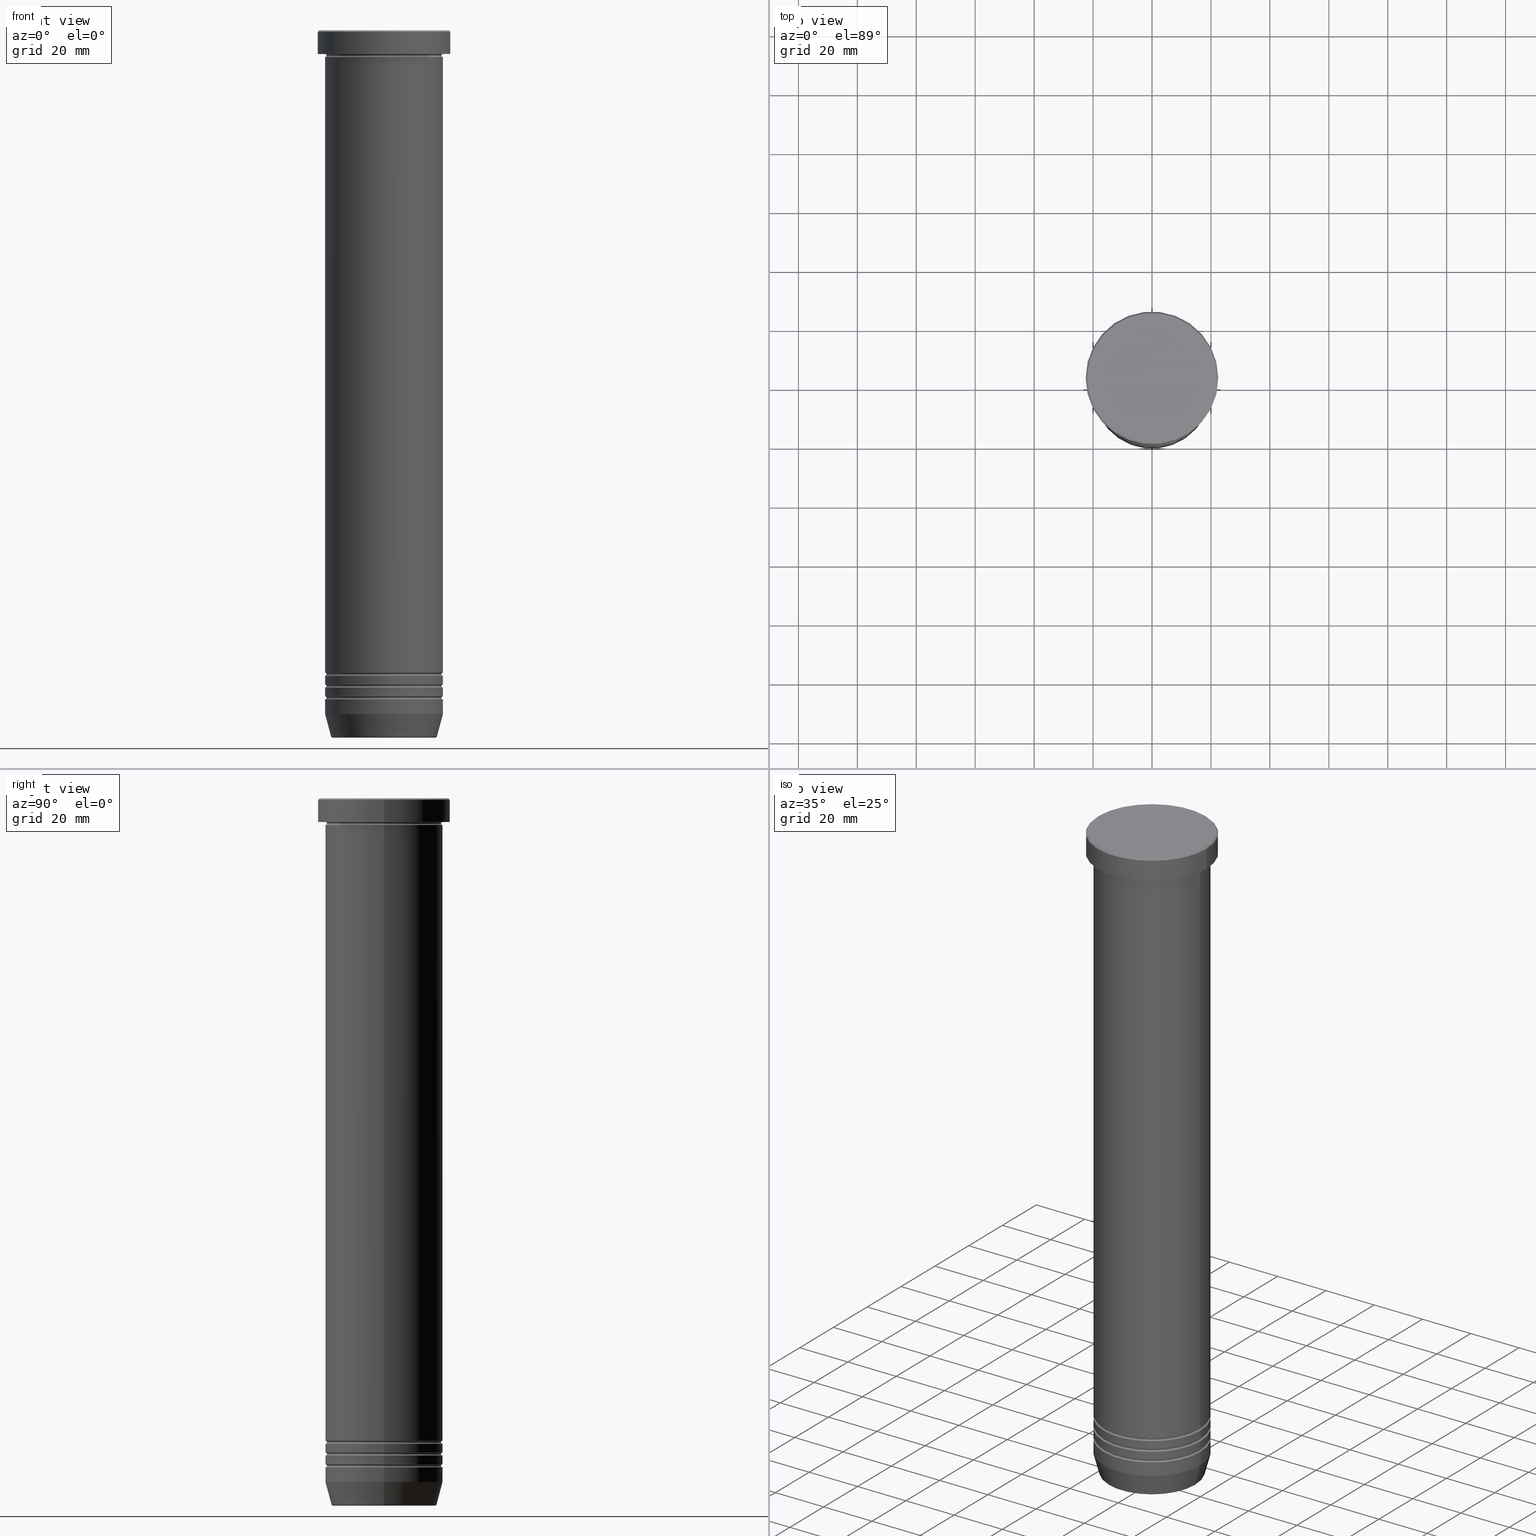
[diagram: canonical four-view strip — front | top / right | iso, engineering-drawing reading convention]
A machine part, canonical four-view strip (front | top / right | iso — engineering-drawing reading convention). The complete STEP part file that produces these views, byte-faithful:
ISO-10303-21;
HEADER;
FILE_DESCRIPTION (( 'STEP AP203' ),
    '1' );
FILE_NAME ('f930.STEP',
    '2024-01-02T18:50:26',
    ( '' ),
    ( '' ),
    'SwSTEP 2.0',
    'SolidWorks 2019',
    '' );
FILE_SCHEMA (( 'CONFIG_CONTROL_DESIGN' ));
ENDSEC;

DATA;
#1 = EDGE_LOOP ( 'NONE', ( #616, #652, #137, #670 ) ) ;
#2 = ORIENTED_EDGE ( 'NONE', *, *, #938, .T. ) ;
#3 = DIRECTION ( 'NONE',  ( 0.000000000000000000, 0.000000000000000000, -1.000000000000000000 ) ) ;
#4 = ORIENTED_EDGE ( 'NONE', *, *, #739, .T. ) ;
#5 = ADVANCED_FACE ( 'NONE', ( #117 ), #684, .T. ) ;
#6 = EDGE_LOOP ( 'NONE', ( #911, #687, #970, #310 ) ) ;
#7 = CIRCLE ( 'NONE', #575, 0.5000000000000004441 ) ;
#8 = FACE_OUTER_BOUND ( 'NONE', #767, .T. ) ;
#9 = ORIENTED_EDGE ( 'NONE', *, *, #407, .T. ) ;
#10 = TOROIDAL_SURFACE ( 'NONE', #781, 19.99999999999999645, 0.5000000000000000000 ) ;
#11 = CIRCLE ( 'NONE', #947, 20.00000000000000000 ) ;
#12 = AXIS2_PLACEMENT_3D ( 'NONE', #624, #777, #197 ) ;
#13 = ORIENTED_EDGE ( 'NONE', *, *, #839, .T. ) ;
#14 = EDGE_CURVE ( 'NONE', #378, #1025, #784, .T. ) ;
#15 = CARTESIAN_POINT ( 'NONE',  ( -19.99999999999999645, 2.449293598294706119E-15, -218.5000000000000284 ) ) ;
#16 = ORIENTED_EDGE ( 'NONE', *, *, #206, .T. ) ;
#17 = ORIENTED_EDGE ( 'NONE', *, *, #627, .T. ) ;
#18 = CARTESIAN_POINT ( 'NONE',  ( -20.00000000000000000, 2.449293598294706513E-15, -50.00000000000000000 ) ) ;
#19 = DIRECTION ( 'NONE',  ( -1.000000000000000000, 0.000000000000000000, 0.000000000000000000 ) ) ;
#20 = ORIENTED_EDGE ( 'NONE', *, *, #792, .T. ) ;
#21 = VERTEX_POINT ( 'NONE', #695 ) ;
#22 = COORDINATED_UNIVERSAL_TIME_OFFSET ( 1, 0, .AHEAD. ) ;
#23 = DIRECTION ( 'NONE',  ( -0.000000000000000000, -0.000000000000000000, 1.000000000000000000 ) ) ;
#24 = DIRECTION ( 'NONE',  ( -0.000000000000000000, -0.000000000000000000, 1.000000000000000000 ) ) ;
#25 = ADVANCED_FACE ( 'NONE', ( #1013 ), #941, .T. ) ;
#26 = CIRCLE ( 'NONE', #1058, 22.50000000000000000 ) ;
#27 = AXIS2_PLACEMENT_3D ( 'NONE', #811, #479, #1050 ) ;
#28 = EDGE_LOOP ( 'NONE', ( #71, #443, #942, #985 ) ) ;
#29 = PERSON_AND_ORGANIZATION_ROLE ( 'design_supplier' ) ;
#30 = LOCAL_TIME ( 19, 50, 26.00000000000000000, #42 ) ;
#31 = CARTESIAN_POINT ( 'NONE',  ( 19.99999999999999289, 0.000000000000000000, -226.0000000000000284 ) ) ;
#32 = PLANE ( 'NONE',  #338 ) ;
#33 = ORIENTED_EDGE ( 'NONE', *, *, #365, .F. ) ;
#34 = ORIENTED_EDGE ( 'NONE', *, *, #771, .T. ) ;
#35 = DIRECTION ( 'NONE',  ( -0.000000000000000000, -0.000000000000000000, 1.000000000000000000 ) ) ;
#36 = CARTESIAN_POINT ( 'NONE',  ( 20.00000000000000000, 0.000000000000000000, -219.0000000000000284 ) ) ;
#37 = CARTESIAN_POINT ( 'NONE',  ( 0.000000000000000000, 0.000000000000000000, 0.000000000000000000 ) ) ;
#38 = DIRECTION ( 'NONE',  ( 1.000000000000000000, 0.000000000000000000, 0.000000000000000000 ) ) ;
#39 = CARTESIAN_POINT ( 'NONE',  ( -22.00000000000000711, 0.000000000000000000, 0.000000000000000000 ) ) ;
#40 = EDGE_CURVE ( 'NONE', #345, #759, #7, .T. ) ;
#41 = ORIENTED_EDGE ( 'NONE', *, *, #436, .T. ) ;
#42 = COORDINATED_UNIVERSAL_TIME_OFFSET ( 1, 0, .AHEAD. ) ;
#43 = EDGE_CURVE ( 'NONE', #675, #702, #214, .T. ) ;
#44 = CYLINDRICAL_SURFACE ( 'NONE', #188, 19.99999999999999645 ) ;
#45 = DIRECTION ( 'NONE',  ( 0.000000000000000000, 0.000000000000000000, -1.000000000000000000 ) ) ;
#46 = EDGE_LOOP ( 'NONE', ( #55, #266, #906, #716 ) ) ;
#47 = AXIS2_PLACEMENT_3D ( 'NONE', #828, #480, #164 ) ;
#48 = AXIS2_PLACEMENT_3D ( 'NONE', #556, #807, #144 ) ;
#49 = VERTEX_POINT ( 'NONE', #39 ) ;
#50 = AXIS2_PLACEMENT_3D ( 'NONE', #1012, #54, #397 ) ;
#51 = DIRECTION ( 'NONE',  ( -0.000000000000000000, -0.000000000000000000, 1.000000000000000000 ) ) ;
#52 = LOCAL_TIME ( 19, 50, 26.00000000000000000, #779 ) ;
#53 = DIRECTION ( 'NONE',  ( -1.000000000000000000, 0.000000000000000000, 0.000000000000000000 ) ) ;
#54 = DIRECTION ( 'NONE',  ( -0.000000000000000000, -0.000000000000000000, 1.000000000000000000 ) ) ;
#55 = ORIENTED_EDGE ( 'NONE', *, *, #537, .T. ) ;
#56 =( NAMED_UNIT ( * ) PLANE_ANGLE_UNIT ( ) SI_UNIT ( $, .RADIAN. ) );
#57 = PRODUCT_RELATED_PRODUCT_CATEGORY ( 'detail', '', ( #125 ) ) ;
#58 = CARTESIAN_POINT ( 'NONE',  ( 0.000000000000000000, 0.000000000000000000, -8.500000000000000000 ) ) ;
#59 = ORIENTED_EDGE ( 'NONE', *, *, #95, .T. ) ;
#60 = DIRECTION ( 'NONE',  ( -0.000000000000000000, -0.000000000000000000, 1.000000000000000000 ) ) ;
#61 = EDGE_CURVE ( 'NONE', #791, #913, #305, .T. ) ;
#62 = ORIENTED_EDGE ( 'NONE', *, *, #466, .T. ) ;
#63 = AXIS2_PLACEMENT_3D ( 'NONE', #717, #641, #68 ) ;
#64 = CIRCLE ( 'NONE', #682, 22.00000000000000711 ) ;
#65 = DIRECTION ( 'NONE',  ( 0.000000000000000000, 0.000000000000000000, -1.000000000000000000 ) ) ;
#66 = VECTOR ( 'NONE', #263, 1000.000000000000000 ) ;
#67 = EDGE_LOOP ( 'NONE', ( #853, #606, #385, #2 ) ) ;
#68 = DIRECTION ( 'NONE',  ( -1.000000000000000000, 0.000000000000000000, 0.000000000000000000 ) ) ;
#69 = APPLICATION_PROTOCOL_DEFINITION ( 'international standard', 'config_control_design', 1994, #202 ) ;
#70 = CARTESIAN_POINT ( 'NONE',  ( 0.000000000000000000, 0.000000000000000000, -227.0000000000000000 ) ) ;
#71 = ORIENTED_EDGE ( 'NONE', *, *, #14, .F. ) ;
#72 = ADVANCED_FACE ( 'NONE', ( #384 ), #278, .F. ) ;
#73 = EDGE_CURVE ( 'NONE', #512, #96, #845, .T. ) ;
#74 = FACE_OUTER_BOUND ( 'NONE', #67, .T. ) ;
#75 = CARTESIAN_POINT ( 'NONE',  ( 19.99999999999999645, 0.000000000000000000, 0.000000000000000000 ) ) ;
#76 = CIRCLE ( 'NONE', #441, 0.5000000000000004441 ) ;
#77 = CARTESIAN_POINT ( 'NONE',  ( 0.000000000000000000, 0.000000000000000000, 0.000000000000000000 ) ) ;
#78 = CIRCLE ( 'NONE', #438, 20.00000000000000000 ) ;
#79 = DIRECTION ( 'NONE',  ( 0.000000000000000000, 0.000000000000000000, -1.000000000000000000 ) ) ;
#80 = AXIS2_PLACEMENT_3D ( 'NONE', #551, #1018, #279 ) ;
#81 = ORIENTED_EDGE ( 'NONE', *, *, #688, .T. ) ;
#82 = ORIENTED_EDGE ( 'NONE', *, *, #270, .F. ) ;
#83 = CARTESIAN_POINT ( 'NONE',  ( 19.50000000000000000, 0.000000000000000000, -8.500000000000000000 ) ) ;
#84 = CARTESIAN_POINT ( 'NONE',  ( 0.000000000000000000, 0.000000000000000000, -222.5000000000000284 ) ) ;
#85 = CC_DESIGN_DATE_AND_TIME_ASSIGNMENT ( #793, #293, ( #122 ) ) ;
#86 = DIRECTION ( 'NONE',  ( 1.000000000000000000, 0.000000000000000000, 0.000000000000000000 ) ) ;
#87 = DIRECTION ( 'NONE',  ( 0.000000000000000000, -1.000000000000000000, 0.000000000000000000 ) ) ;
#88 = EDGE_LOOP ( 'NONE', ( #133, #292, #81, #494 ) ) ;
#89 = ORIENTED_EDGE ( 'NONE', *, *, #162, .T. ) ;
#90 = DIRECTION ( 'NONE',  ( 0.000000000000000000, 0.000000000000000000, -1.000000000000000000 ) ) ;
#91 = CARTESIAN_POINT ( 'NONE',  ( -19.99999999999999645, 2.449293598294706119E-15, -222.0000000000000000 ) ) ;
#92 = DIRECTION ( 'NONE',  ( -0.000000000000000000, -0.000000000000000000, 1.000000000000000000 ) ) ;
#93 = DIRECTION ( 'NONE',  ( -0.2588190451025215166, 3.169619151431774802E-17, 0.9659258262890679791 ) ) ;
#94 = ORIENTED_EDGE ( 'NONE', *, *, #307, .F. ) ;
#95 = EDGE_CURVE ( 'NONE', #393, #524, #399, .T. ) ;
#96 = VERTEX_POINT ( 'NONE', #333 ) ;
#97 = CARTESIAN_POINT ( 'NONE',  ( -19.99999999999999645, 2.449293598294706119E-15, 0.000000000000000000 ) ) ;
#98 = TOROIDAL_SURFACE ( 'NONE', #490, 20.00000000000000000, 0.5000000000000000000 ) ;
#99 = CARTESIAN_POINT ( 'NONE',  ( 0.000000000000000000, 0.000000000000000000, -239.5000000000000568 ) ) ;
#100 = AXIS2_PLACEMENT_3D ( 'NONE', #543, #130, #475 ) ;
#101 = ORIENTED_EDGE ( 'NONE', *, *, #621, .T. ) ;
#102 = CIRCLE ( 'NONE', #976, 19.49999999999999645 ) ;
#103 = AXIS2_PLACEMENT_3D ( 'NONE', #730, #239, #885 ) ;
#104 = ADVANCED_FACE ( 'NONE', ( #964 ), #1031, .T. ) ;
#105 = ORIENTED_EDGE ( 'NONE', *, *, #830, .T. ) ;
#106 = CARTESIAN_POINT ( 'NONE',  ( -19.99999999999999645, 0.000000000000000000, -222.5000000000000284 ) ) ;
#107 = FACE_OUTER_BOUND ( 'NONE', #300, .T. ) ;
#108 = VERTEX_POINT ( 'NONE', #726 ) ;
#109 = ORIENTED_EDGE ( 'NONE', *, *, #193, .T. ) ;
#110 = CALENDAR_DATE ( 2024, 2, 1 ) ;
#111 = APPROVAL ( #367, 'NEUR�EN�' ) ;
#112 = DIRECTION ( 'NONE',  ( 1.000000000000000000, 0.000000000000000000, 0.000000000000000000 ) ) ;
#113 = CARTESIAN_POINT ( 'NONE',  ( 0.000000000000000000, 0.000000000000000000, -227.0000000000000000 ) ) ;
#114 = ORIENTED_EDGE ( 'NONE', *, *, #61, .F. ) ;
#115 = DIRECTION ( 'NONE',  ( -0.000000000000000000, -1.000000000000000000, -0.000000000000000000 ) ) ;
#116 = CARTESIAN_POINT ( 'NONE',  ( 0.000000000000000000, 0.000000000000000000, -239.5000000000000568 ) ) ;
#117 = FACE_OUTER_BOUND ( 'NONE', #226, .T. ) ;
#118 = CIRCLE ( 'NONE', #648, 0.5000000000000004441 ) ;
#119 = CIRCLE ( 'NONE', #251, 0.5000000000000004441 ) ;
#120 = VERTEX_POINT ( 'NONE', #663 ) ;
#121 = DATE_AND_TIME ( #386, #30 ) ;
#122 = SECURITY_CLASSIFICATION ( '', '', #534 ) ;
#123 = DIRECTION ( 'NONE',  ( 1.000000000000000000, 0.000000000000000000, 0.000000000000000000 ) ) ;
#124 = CARTESIAN_POINT ( 'NONE',  ( -19.99999999999999289, 2.449293598294705724E-15, -226.0000000000000284 ) ) ;
#125 = PRODUCT ( 'f930', 'f930', '', ( #567 ) ) ;
#126 = ORIENTED_EDGE ( 'NONE', *, *, #168, .T. ) ;
#127 = PERSON_AND_ORGANIZATION ( #298, #340 ) ;
#128 = DIRECTION ( 'NONE',  ( -0.000000000000000000, -0.000000000000000000, 1.000000000000000000 ) ) ;
#129 = DIRECTION ( 'NONE',  ( 0.000000000000000000, 0.000000000000000000, -1.000000000000000000 ) ) ;
#130 = DIRECTION ( 'NONE',  ( -0.000000000000000000, -0.000000000000000000, 1.000000000000000000 ) ) ;
#131 = CARTESIAN_POINT ( 'NONE',  ( 0.000000000000000000, 0.000000000000000000, -9.000000000000001776 ) ) ;
#132 = CARTESIAN_POINT ( 'NONE',  ( 0.000000000000000000, 0.000000000000000000, -240.0000000000000568 ) ) ;
#133 = ORIENTED_EDGE ( 'NONE', *, *, #873, .F. ) ;
#134 = DATE_AND_TIME ( #579, #174 ) ;
#135 = DIRECTION ( 'NONE',  ( -0.000000000000000000, -0.000000000000000000, 1.000000000000000000 ) ) ;
#136 = FACE_OUTER_BOUND ( 'NONE', #1001, .T. ) ;
#137 = ORIENTED_EDGE ( 'NONE', *, *, #365, .T. ) ;
#138 = ORIENTED_EDGE ( 'NONE', *, *, #848, .T. ) ;
#139 = CIRCLE ( 'NONE', #469, 0.5000000000000004441 ) ;
#140 = AXIS2_PLACEMENT_3D ( 'NONE', #755, #87, #751 ) ;
#141 = ADVANCED_FACE ( 'NONE', ( #659 ), #559, .T. ) ;
#142 = TOROIDAL_SURFACE ( 'NONE', #895, 20.00000000000000000, 0.5000000000000000000 ) ;
#143 = CARTESIAN_POINT ( 'NONE',  ( -20.00000000000000000, 2.449293598294706513E-15, -223.0000000000000284 ) ) ;
#144 = DIRECTION ( 'NONE',  ( 1.000000000000000000, 0.000000000000000000, 0.000000000000000000 ) ) ;
#145 = EDGE_CURVE ( 'NONE', #681, #759, #898, .T. ) ;
#146 = DIRECTION ( 'NONE',  ( 0.000000000000000000, 0.000000000000000000, -1.000000000000000000 ) ) ;
#147 = CARTESIAN_POINT ( 'NONE',  ( 20.00000000000000000, 2.449293598294706513E-15, -8.000000000000000000 ) ) ;
#148 = CARTESIAN_POINT ( 'NONE',  ( 0.000000000000000000, 0.000000000000000000, -218.5000000000000284 ) ) ;
#149 = DIRECTION ( 'NONE',  ( -0.000000000000000000, -0.000000000000000000, 1.000000000000000000 ) ) ;
#150 = ORIENTED_EDGE ( 'NONE', *, *, #499, .F. ) ;
#151 = AXIS2_PLACEMENT_3D ( 'NONE', #219, #463, #795 ) ;
#152 = EDGE_LOOP ( 'NONE', ( #722, #589, #17, #33 ) ) ;
#153 = APPROVAL_STATUS ( 'not_yet_approved' ) ;
#154 = TOROIDAL_SURFACE ( 'NONE', #337, 19.99999999999999645, 0.5000000000000000000 ) ;
#155 = AXIS2_PLACEMENT_3D ( 'NONE', #131, #288, #38 ) ;
#156 = CARTESIAN_POINT ( 'NONE',  ( 20.00000000000000000, 0.000000000000000000, -50.00000000000000000 ) ) ;
#157 = CIRCLE ( 'NONE', #304, 19.49999999999999645 ) ;
#158 = CIRCLE ( 'NONE', #1007, 22.50000000000000000 ) ;
#159 = CARTESIAN_POINT ( 'NONE',  ( 0.000000000000000000, 0.000000000000000000, -226.5000000000000284 ) ) ;
#160 = ADVANCED_FACE ( 'NONE', ( #583 ), #98, .F. ) ;
#161 = CARTESIAN_POINT ( 'NONE',  ( 0.000000000000000000, 0.000000000000000000, -50.00000000000000000 ) ) ;
#162 = EDGE_CURVE ( 'NONE', #681, #867, #875, .T. ) ;
#163 = LINE ( 'NONE', #496, #353 ) ;
#164 = DIRECTION ( 'NONE',  ( 1.000000000000000000, 0.000000000000000000, 0.000000000000000000 ) ) ;
#165 = DIRECTION ( 'NONE',  ( -0.000000000000000000, -0.000000000000000000, 1.000000000000000000 ) ) ;
#166 = CARTESIAN_POINT ( 'NONE',  ( 0.000000000000000000, 0.000000000000000000, 0.000000000000000000 ) ) ;
#167 = VERTEX_POINT ( 'NONE', #901 ) ;
#168 = EDGE_CURVE ( 'NONE', #986, #675, #943, .T. ) ;
#169 = CARTESIAN_POINT ( 'NONE',  ( 0.000000000000000000, 0.000000000000000000, -222.5000000000000284 ) ) ;
#170 = VECTOR ( 'NONE', #478, 1000.000000000000000 ) ;
#171 = DIRECTION ( 'NONE',  ( -0.000000000000000000, -0.000000000000000000, 1.000000000000000000 ) ) ;
#172 = TOROIDAL_SURFACE ( 'NONE', #747, 19.99999999999999645, 0.5000000000000000000 ) ;
#173 = DIRECTION ( 'NONE',  ( -1.224646799147353207E-16, 1.000000000000000000, 0.000000000000000000 ) ) ;
#174 = LOCAL_TIME ( 19, 50, 26.00000000000000000, #824 ) ;
#175 = VERTEX_POINT ( 'NONE', #143 ) ;
#176 = EDGE_LOOP ( 'NONE', ( #486, #933, #150, #707 ) ) ;
#177 = FACE_OUTER_BOUND ( 'NONE', #778, .T. ) ;
#178 = EDGE_CURVE ( 'NONE', #867, #21, #76, .T. ) ;
#179 = DIRECTION ( 'NONE',  ( 0.000000000000000000, 0.000000000000000000, -1.000000000000000000 ) ) ;
#180 = ORIENTED_EDGE ( 'NONE', *, *, #168, .F. ) ;
#181 = ORIENTED_EDGE ( 'NONE', *, *, #792, .F. ) ;
#182 = DIRECTION ( 'NONE',  ( -0.000000000000000000, -0.000000000000000000, 1.000000000000000000 ) ) ;
#183 = DIRECTION ( 'NONE',  ( 1.000000000000000000, 0.000000000000000000, 0.000000000000000000 ) ) ;
#184 = ORIENTED_EDGE ( 'NONE', *, *, #690, .T. ) ;
#185 = ORIENTED_EDGE ( 'NONE', *, *, #857, .F. ) ;
#186 = AXIS2_PLACEMENT_3D ( 'NONE', #132, #309, #280 ) ;
#187 = FACE_OUTER_BOUND ( 'NONE', #473, .T. ) ;
#188 = AXIS2_PLACEMENT_3D ( 'NONE', #37, #388, #382 ) ;
#189 = ORIENTED_EDGE ( 'NONE', *, *, #630, .F. ) ;
#190 = CIRCLE ( 'NONE', #945, 20.00000000000000000 ) ;
#191 = ADVANCED_FACE ( 'NONE', ( #826, #817 ), #476, .T. ) ;
#192 = CC_DESIGN_SECURITY_CLASSIFICATION ( #122, ( #714 ) ) ;
#193 = EDGE_CURVE ( 'NONE', #913, #108, #709, .T. ) ;
#194 = DIRECTION ( 'NONE',  ( -0.000000000000000000, -0.000000000000000000, 1.000000000000000000 ) ) ;
#195 = LINE ( 'NONE', #291, #944 ) ;
#196 = CARTESIAN_POINT ( 'NONE',  ( 19.99999999999999645, 0.000000000000000000, -222.0000000000000000 ) ) ;
#197 = DIRECTION ( 'NONE',  ( 1.000000000000000000, 0.000000000000000000, 0.000000000000000000 ) ) ;
#198 = EDGE_LOOP ( 'NONE', ( #336, #181, #737, #700 ) ) ;
#199 = PERSON_AND_ORGANIZATION_ROLE ( 'classification_officer' ) ;
#200 = CARTESIAN_POINT ( 'NONE',  ( 0.000000000000000000, 0.000000000000000000, -8.500000000000000000 ) ) ;
#201 = DIRECTION ( 'NONE',  ( -0.000000000000000000, -0.000000000000000000, 1.000000000000000000 ) ) ;
#202 = APPLICATION_CONTEXT ( 'configuration controlled 3d designs of mechanical parts and assemblies' ) ;
#203 = ORIENTED_EDGE ( 'NONE', *, *, #40, .F. ) ;
#204 = CALENDAR_DATE ( 2024, 2, 1 ) ;
#205 = CARTESIAN_POINT ( 'NONE',  ( 0.000000000000000000, 0.000000000000000000, -218.5000000000000284 ) ) ;
#206 = EDGE_CURVE ( 'NONE', #1020, #416, #299, .T. ) ;
#207 = CARTESIAN_POINT ( 'NONE',  ( 19.99999999999999645, 0.000000000000000000, 0.000000000000000000 ) ) ;
#208 = AXIS2_PLACEMENT_3D ( 'NONE', #482, #229, #975 ) ;
#209 = DIRECTION ( 'NONE',  ( -0.000000000000000000, -0.000000000000000000, 1.000000000000000000 ) ) ;
#210 = CIRCLE ( 'NONE', #487, 0.5000000000000004441 ) ;
#211 = CONICAL_SURFACE ( 'NONE', #818, 22.00000000000000711, 0.7853981633974415066 ) ;
#212 = ORIENTED_EDGE ( 'NONE', *, *, #823, .F. ) ;
#213 = CC_DESIGN_APPROVAL ( #313, ( #596 ) ) ;
#214 = CIRCLE ( 'NONE', #745, 0.5000000000000004441 ) ;
#215 = CARTESIAN_POINT ( 'NONE',  ( -22.50000000000000000, 2.755455298081544778E-15, 0.000000000000000000 ) ) ;
#216 = CARTESIAN_POINT ( 'NONE',  ( -19.99999999999999289, 2.449293598294705724E-15, -218.0000000000000284 ) ) ;
#217 = CARTESIAN_POINT ( 'NONE',  ( 0.000000000000000000, 0.000000000000000000, 0.000000000000000000 ) ) ;
#218 = ADVANCED_FACE ( 'NONE', ( #1047 ), #715, .F. ) ;
#219 = CARTESIAN_POINT ( 'NONE',  ( 0.000000000000000000, 0.000000000000000000, -218.5000000000000284 ) ) ;
#220 = EDGE_LOOP ( 'NONE', ( #546, #9, #343, #922 ) ) ;
#221 = DIRECTION ( 'NONE',  ( 1.000000000000000000, 0.000000000000000000, 0.000000000000000000 ) ) ;
#222 = CARTESIAN_POINT ( 'NONE',  ( 0.000000000000000000, 0.000000000000000000, -226.5000000000000284 ) ) ;
#223 = DIRECTION ( 'NONE',  ( 1.000000000000000000, 0.000000000000000000, 0.000000000000000000 ) ) ;
#224 = CARTESIAN_POINT ( 'NONE',  ( 22.50000000000000000, 0.000000000000000000, -7.999999999999998224 ) ) ;
#225 = ORIENTED_EDGE ( 'NONE', *, *, #903, .F. ) ;
#226 = EDGE_LOOP ( 'NONE', ( #260, #502, #238, #796 ) ) ;
#227 = CARTESIAN_POINT ( 'NONE',  ( 0.000000000000000000, 2.326828918379971601E-14, -240.0000000000000568 ) ) ;
#228 = CARTESIAN_POINT ( 'NONE',  ( 20.00000000000000000, 0.000000000000000000, -232.0000000000000000 ) ) ;
#229 = DIRECTION ( 'NONE',  ( -0.000000000000000000, -0.000000000000000000, 1.000000000000000000 ) ) ;
#230 = TOROIDAL_SURFACE ( 'NONE', #729, 19.99999999999999645, 0.5000000000000000000 ) ;
#231 = AXIS2_PLACEMENT_3D ( 'NONE', #161, #413, #736 ) ;
#232 = EDGE_CURVE ( 'NONE', #723, #120, #484, .T. ) ;
#233 = AXIS2_PLACEMENT_3D ( 'NONE', #148, #65, #884 ) ;
#234 = CARTESIAN_POINT ( 'NONE',  ( 0.000000000000000000, 0.000000000000000000, -218.5000000000000284 ) ) ;
#235 = CARTESIAN_POINT ( 'NONE',  ( -19.99999999999999645, 2.449293598294706119E-15, 0.000000000000000000 ) ) ;
#236 = DIRECTION ( 'NONE',  ( 0.000000000000000000, -1.000000000000000000, 0.000000000000000000 ) ) ;
#237 = VERTEX_POINT ( 'NONE', #602 ) ;
#238 = ORIENTED_EDGE ( 'NONE', *, *, #1033, .F. ) ;
#239 = DIRECTION ( 'NONE',  ( -0.000000000000000000, -0.000000000000000000, 1.000000000000000000 ) ) ;
#240 = ORIENTED_EDGE ( 'NONE', *, *, #464, .T. ) ;
#241 = MANIFOLD_SOLID_BREP ( 'Zkosen�1', #963 ) ;
#242 = DIRECTION ( 'NONE',  ( 0.000000000000000000, 0.000000000000000000, 1.000000000000000000 ) ) ;
#243 = CC_DESIGN_PERSON_AND_ORGANIZATION_ASSIGNMENT ( #934, #199, ( #122 ) ) ;
#244 = DIRECTION ( 'NONE',  ( -0.000000000000000000, -1.000000000000000000, -0.000000000000000000 ) ) ;
#245 = ADVANCED_FACE ( 'NONE', ( #8 ), #948, .F. ) ;
#246 = DIRECTION ( 'NONE',  ( -1.000000000000000000, 0.000000000000000000, 0.000000000000000000 ) ) ;
#247 = AXIS2_PLACEMENT_3D ( 'NONE', #649, #320, #894 ) ;
#248 = VERTEX_POINT ( 'NONE', #925 ) ;
#249 = PERSON_AND_ORGANIZATION ( #298, #340 ) ;
#250 = AXIS2_PLACEMENT_3D ( 'NONE', #113, #699, #776 ) ;
#251 = AXIS2_PLACEMENT_3D ( 'NONE', #15, #590, #838 ) ;
#252 = DIRECTION ( 'NONE',  ( 0.7071067811865426878, 8.659560562354874926E-17, -0.7071067811865524577 ) ) ;
#253 = TOROIDAL_SURFACE ( 'NONE', #664, 17.47274296656152615, 0.5000000000000000000 ) ;
#254 = DIRECTION ( 'NONE',  ( 0.000000000000000000, 0.000000000000000000, -1.000000000000000000 ) ) ;
#255 = CARTESIAN_POINT ( 'NONE',  ( -17.47274296656152615, 2.169366823916866925E-15, -240.0000000000000568 ) ) ;
#256 = ORIENTED_EDGE ( 'NONE', *, *, #653, .F. ) ;
#257 = EDGE_CURVE ( 'NONE', #986, #540, #634, .T. ) ;
#258 = CARTESIAN_POINT ( 'NONE',  ( 0.000000000000000000, 0.000000000000000000, 0.000000000000000000 ) ) ;
#259 = ORIENTED_EDGE ( 'NONE', *, *, #193, .F. ) ;
#260 = ORIENTED_EDGE ( 'NONE', *, *, #645, .T. ) ;
#261 = ADVANCED_FACE ( 'NONE', ( #187 ), #253, .T. ) ;
#262 = VECTOR ( 'NONE', #457, 1000.000000000000000 ) ;
#263 = DIRECTION ( 'NONE',  ( -0.000000000000000000, -0.000000000000000000, 1.000000000000000000 ) ) ;
#264 = DIRECTION ( 'NONE',  ( -0.000000000000000000, -0.000000000000000000, 1.000000000000000000 ) ) ;
#265 = EDGE_LOOP ( 'NONE', ( #259, #114, #347, #1034 ) ) ;
#266 = ORIENTED_EDGE ( 'NONE', *, *, #40, .T. ) ;
#267 = CARTESIAN_POINT ( 'NONE',  ( 0.000000000000000000, 0.000000000000000000, -8.500000000000000000 ) ) ;
#268 = ORIENTED_EDGE ( 'NONE', *, *, #690, .F. ) ;
#269 = ORIENTED_EDGE ( 'NONE', *, *, #257, .T. ) ;
#270 = EDGE_CURVE ( 'NONE', #681, #986, #672, .T. ) ;
#271 = CARTESIAN_POINT ( 'NONE',  ( 0.000000000000000000, 0.000000000000000000, -222.5000000000000284 ) ) ;
#272 = DIRECTION ( 'NONE',  ( 1.000000000000000000, 0.000000000000000000, 0.000000000000000000 ) ) ;
#273 = EDGE_CURVE ( 'NONE', #991, #512, #850, .T. ) ;
#274 = ORIENTED_EDGE ( 'NONE', *, *, #710, .F. ) ;
#275 = ORIENTED_EDGE ( 'NONE', *, *, #145, .T. ) ;
#276 = DATE_TIME_ROLE ( 'creation_date' ) ;
#277 = DIRECTION ( 'NONE',  ( 0.000000000000000000, 0.000000000000000000, -1.000000000000000000 ) ) ;
#278 = TOROIDAL_SURFACE ( 'NONE', #151, 19.99999999999999645, 0.5000000000000000000 ) ;
#279 = DIRECTION ( 'NONE',  ( -1.000000000000000000, 0.000000000000000000, -0.000000000000000000 ) ) ;
#280 = DIRECTION ( 'NONE',  ( 1.000000000000000000, 0.000000000000000000, 0.000000000000000000 ) ) ;
#281 = AXIS2_PLACEMENT_3D ( 'NONE', #705, #115, #937 ) ;
#282 = APPROVAL_PERSON_ORGANIZATION ( #541, #562, #380 ) ;
#283 = ORIENTED_EDGE ( 'NONE', *, *, #95, .F. ) ;
#284 = APPROVAL_STATUS ( 'not_yet_approved' ) ;
#285 = DIRECTION ( 'NONE',  ( 1.000000000000000000, 0.000000000000000000, 0.000000000000000000 ) ) ;
#286 = CYLINDRICAL_SURFACE ( 'NONE', #633, 20.00000000000000000 ) ;
#287 = CARTESIAN_POINT ( 'NONE',  ( -19.99999999999999645, 2.449293598294706119E-15, -226.5000000000000284 ) ) ;
#288 = DIRECTION ( 'NONE',  ( -0.000000000000000000, -0.000000000000000000, 1.000000000000000000 ) ) ;
#289 = ORIENTED_EDGE ( 'NONE', *, *, #938, .F. ) ;
#290 = CARTESIAN_POINT ( 'NONE',  ( -19.49999999999999645, 2.418677428316021937E-15, -226.5000000000000284 ) ) ;
#291 = CARTESIAN_POINT ( 'NONE',  ( 22.50000000000000000, 0.000000000000000000, 0.000000000000000000 ) ) ;
#292 = ORIENTED_EDGE ( 'NONE', *, *, #14, .T. ) ;
#293 = DATE_TIME_ROLE ( 'classification_date' ) ;
#294 = DIRECTION ( 'NONE',  ( 1.000000000000000000, 0.000000000000000000, 0.000000000000000000 ) ) ;
#295 = EDGE_CURVE ( 'NONE', #416, #96, #904, .T. ) ;
#296 = CARTESIAN_POINT ( 'NONE',  ( 20.00000000000000000, 2.449293598294706513E-15, -8.500000000000000000 ) ) ;
#297 = FACE_OUTER_BOUND ( 'NONE', #936, .T. ) ;
#298 = PERSON ( 'NEUR�EN�', 'NEUR�EN�', 'NEUR�EN�', ('NEUR�EN�'), ('NEUR�EN�'), ('NEUR�EN�') ) ;
#299 = CIRCLE ( 'NONE', #103, 20.00000000000000000 ) ;
#300 = EDGE_LOOP ( 'NONE', ( #89, #639, #180, #82 ) ) ;
#301 = CIRCLE ( 'NONE', #666, 20.00000000000000000 ) ;
#302 = AXIS2_PLACEMENT_3D ( 'NONE', #70, #564, #888 ) ;
#303 = ORIENTED_EDGE ( 'NONE', *, *, #1029, .T. ) ;
#304 = AXIS2_PLACEMENT_3D ( 'NONE', #205, #864, #123 ) ;
#305 = CIRCLE ( 'NONE', #521, 17.47274296656152615 ) ;
#306 = DIRECTION ( 'NONE',  ( 1.000000000000000000, 0.000000000000000000, 0.000000000000000000 ) ) ;
#307 = EDGE_CURVE ( 'NONE', #120, #723, #158, .T. ) ;
#308 = FACE_OUTER_BOUND ( 'NONE', #265, .T. ) ;
#309 = DIRECTION ( 'NONE',  ( -0.000000000000000000, -0.000000000000000000, 1.000000000000000000 ) ) ;
#310 = ORIENTED_EDGE ( 'NONE', *, *, #662, .F. ) ;
#311 = CYLINDRICAL_SURFACE ( 'NONE', #503, 22.50000000000000000 ) ;
#312 = FACE_OUTER_BOUND ( 'NONE', #981, .T. ) ;
#313 = APPROVAL ( #153, 'NEUR�EN�' ) ;
#314 = DIRECTION ( 'NONE',  ( -0.000000000000000000, -0.000000000000000000, 1.000000000000000000 ) ) ;
#315 = ADVANCED_FACE ( 'NONE', ( #511 ), #342, .T. ) ;
#316 = EDGE_LOOP ( 'NONE', ( #203, #101, #691, #601 ) ) ;
#317 = ORIENTED_EDGE ( 'NONE', *, *, #954, .F. ) ;
#318 = CARTESIAN_POINT ( 'NONE',  ( -20.00000000000000000, 2.449293598294706513E-15, 0.000000000000000000 ) ) ;
#319 = DIRECTION ( 'NONE',  ( 1.000000000000000000, 0.000000000000000000, 0.000000000000000000 ) ) ;
#320 = DIRECTION ( 'NONE',  ( 1.224646799147353207E-16, 1.000000000000000000, 0.000000000000000000 ) ) ;
#321 = ORIENTED_EDGE ( 'NONE', *, *, #73, .F. ) ;
#322 = CIRCLE ( 'NONE', #140, 0.5000000000000004441 ) ;
#323 = AXIS2_PLACEMENT_3D ( 'NONE', #689, #549, #870 ) ;
#324 = APPROVAL_PERSON_ORGANIZATION ( #703, #111, #515 ) ;
#325 = DIRECTION ( 'NONE',  ( -1.224646799147353207E-16, 1.000000000000000000, 0.000000000000000000 ) ) ;
#326 = DIRECTION ( 'NONE',  ( 1.000000000000000000, 0.000000000000000000, 0.000000000000000000 ) ) ;
#327 =( LENGTH_UNIT ( ) NAMED_UNIT ( * ) SI_UNIT ( .MILLI., .METRE. ) );
#328 = DIRECTION ( 'NONE',  ( 1.000000000000000000, 0.000000000000000000, 0.000000000000000000 ) ) ;
#329 = ORIENTED_EDGE ( 'NONE', *, *, #983, .T. ) ;
#330 = PERSON_AND_ORGANIZATION ( #298, #340 ) ;
#331 = DIRECTION ( 'NONE',  ( 1.000000000000000000, 0.000000000000000000, 0.000000000000000000 ) ) ;
#332 = ADVANCED_FACE ( 'NONE', ( #668 ), #558, .F. ) ;
#333 = CARTESIAN_POINT ( 'NONE',  ( 20.00000000000000000, 0.000000000000000000, -9.000000000000001776 ) ) ;
#334 = ORIENTED_EDGE ( 'NONE', *, *, #414, .T. ) ;
#335 = AXIS2_PLACEMENT_3D ( 'NONE', #831, #79, #591 ) ;
#336 = ORIENTED_EDGE ( 'NONE', *, *, #808, .F. ) ;
#337 = AXIS2_PLACEMENT_3D ( 'NONE', #573, #728, #53 ) ;
#338 = AXIS2_PLACEMENT_3D ( 'NONE', #720, #940, #871 ) ;
#339 = CYLINDRICAL_SURFACE ( 'NONE', #650, 20.00000000000000000 ) ;
#340 = ORGANIZATION ( 'NEUR�EN�', 'NEUR�EN�', '' ) ;
#341 = EDGE_CURVE ( 'NONE', #167, #966, #1056, .T. ) ;
#342 = PLANE ( 'NONE',  #762 ) ;
#343 = ORIENTED_EDGE ( 'NONE', *, *, #771, .F. ) ;
#344 = FACE_OUTER_BOUND ( 'NONE', #495, .T. ) ;
#345 = VERTEX_POINT ( 'NONE', #909 ) ;
#346 = EDGE_CURVE ( 'NONE', #586, #526, #394, .T. ) ;
#347 = ORIENTED_EDGE ( 'NONE', *, *, #653, .T. ) ;
#348 = DIRECTION ( 'NONE',  ( -1.000000000000000000, 0.000000000000000000, 0.000000000000000000 ) ) ;
#349 = ORIENTED_EDGE ( 'NONE', *, *, #162, .F. ) ;
#350 = EDGE_CURVE ( 'NONE', #833, #455, #988, .T. ) ;
#351 = ORIENTED_EDGE ( 'NONE', *, *, #808, .T. ) ;
#352 = AXIS2_PLACEMENT_3D ( 'NONE', #810, #325, #654 ) ;
#353 = VECTOR ( 'NONE', #827, 1000.000000000000000 ) ;
#354 = DIRECTION ( 'NONE',  ( -0.000000000000000000, -0.000000000000000000, 1.000000000000000000 ) ) ;
#355 = DIRECTION ( 'NONE',  ( -1.000000000000000000, 0.000000000000000000, 0.000000000000000000 ) ) ;
#356 = VECTOR ( 'NONE', #314, 1000.000000000000000 ) ;
#357 = VERTEX_POINT ( 'NONE', #599 ) ;
#358 = EDGE_CURVE ( 'NONE', #913, #791, #927, .T. ) ;
#359 = DIRECTION ( 'NONE',  ( -0.000000000000000000, -0.000000000000000000, 1.000000000000000000 ) ) ;
#360 = EDGE_CURVE ( 'NONE', #378, #966, #139, .T. ) ;
#361 = EDGE_LOOP ( 'NONE', ( #189, #334, #377, #924 ) ) ;
#362 = ORIENTED_EDGE ( 'NONE', *, *, #448, .F. ) ;
#363 = DIRECTION ( 'NONE',  ( 0.000000000000000000, 0.000000000000000000, -1.000000000000000000 ) ) ;
#364 = CARTESIAN_POINT ( 'NONE',  ( 19.99999999999999645, 0.000000000000000000, -226.5000000000000284 ) ) ;
#365 = EDGE_CURVE ( 'NONE', #723, #357, #195, .T. ) ;
#366 = VERTEX_POINT ( 'NONE', #865 ) ;
#367 = APPROVAL_STATUS ( 'not_yet_approved' ) ;
#368 = LINE ( 'NONE', #215, #370 ) ;
#369 = DIRECTION ( 'NONE',  ( 1.000000000000000000, 0.000000000000000000, 0.000000000000000000 ) ) ;
#370 = VECTOR ( 'NONE', #128, 1000.000000000000000 ) ;
#371 = DIRECTION ( 'NONE',  ( 1.000000000000000000, 0.000000000000000000, 0.000000000000000000 ) ) ;
#372 = CIRCLE ( 'NONE', #595, 19.99999999999999289 ) ;
#373 = CIRCLE ( 'NONE', #302, 20.00000000000000000 ) ;
#374 = ORIENTED_EDGE ( 'NONE', *, *, #839, .F. ) ;
#375 = CARTESIAN_POINT ( 'NONE',  ( -20.00000000000000000, 2.449293598294706513E-15, -8.500000000000000000 ) ) ;
#376 = CARTESIAN_POINT ( 'NONE',  ( 20.00000000000000000, 0.000000000000000000, 0.000000000000000000 ) ) ;
#377 = ORIENTED_EDGE ( 'NONE', *, *, #554, .T. ) ;
#378 = VERTEX_POINT ( 'NONE', #124 ) ;
#379 = ADVANCED_FACE ( 'NONE', ( #456 ), #44, .T. ) ;
#380 = APPROVAL_ROLE ( '' ) ;
#381 = DIRECTION ( 'NONE',  ( -0.000000000000000000, -0.000000000000000000, 1.000000000000000000 ) ) ;
#382 = DIRECTION ( 'NONE',  ( 1.000000000000000000, 0.000000000000000000, 0.000000000000000000 ) ) ;
#383 = CARTESIAN_POINT ( 'NONE',  ( 0.000000000000000000, 0.000000000000000000, -222.5000000000000284 ) ) ;
#384 = FACE_OUTER_BOUND ( 'NONE', #905, .T. ) ;
#385 = ORIENTED_EDGE ( 'NONE', *, *, #73, .T. ) ;
#386 = CALENDAR_DATE ( 2024, 2, 1 ) ;
#387 = DIRECTION ( 'NONE',  ( 1.000000000000000000, 0.000000000000000000, 0.000000000000000000 ) ) ;
#388 = DIRECTION ( 'NONE',  ( -0.000000000000000000, -0.000000000000000000, 1.000000000000000000 ) ) ;
#389 = AXIS2_PLACEMENT_3D ( 'NONE', #721, #644, #958 ) ;
#390 = CARTESIAN_POINT ( 'NONE',  ( 20.00000000000000000, 0.000000000000000000, -8.500000000000000000 ) ) ;
#391 = AXIS2_PLACEMENT_3D ( 'NONE', #169, #837, #676 ) ;
#392 = AXIS2_PLACEMENT_3D ( 'NONE', #694, #45, #462 ) ;
#393 = VERTEX_POINT ( 'NONE', #216 ) ;
#394 = CIRCLE ( 'NONE', #437, 20.00000000000000000 ) ;
#395 = PLANE ( 'NONE',  #651 ) ;
#396 = DIRECTION ( 'NONE',  ( 0.000000000000000000, 0.000000000000000000, -1.000000000000000000 ) ) ;
#397 = DIRECTION ( 'NONE',  ( 1.000000000000000000, 0.000000000000000000, 0.000000000000000000 ) ) ;
#398 = ADVANCED_FACE ( 'NONE', ( #1023 ), #799, .F. ) ;
#399 = LINE ( 'NONE', #1036, #356 ) ;
#400 = ORIENTED_EDGE ( 'NONE', *, *, #346, .T. ) ;
#401 = CARTESIAN_POINT ( 'NONE',  ( 19.99999999999999645, 0.000000000000000000, -218.5000000000000284 ) ) ;
#402 = DIRECTION ( 'NONE',  ( 0.000000000000000000, 0.000000000000000000, -1.000000000000000000 ) ) ;
#403 = CARTESIAN_POINT ( 'NONE',  ( 19.99999999999999645, 0.000000000000000000, 0.000000000000000000 ) ) ;
#404 = DIRECTION ( 'NONE',  ( -1.000000000000000000, 0.000000000000000000, 0.000000000000000000 ) ) ;
#405 = DIRECTION ( 'NONE',  ( -1.000000000000000000, 0.000000000000000000, -0.000000000000000000 ) ) ;
#406 = FACE_OUTER_BOUND ( 'NONE', #553, .T. ) ;
#407 = EDGE_CURVE ( 'NONE', #512, #586, #832, .T. ) ;
#408 = CIRCLE ( 'NONE', #48, 20.00000000000000000 ) ;
#409 = CIRCLE ( 'NONE', #27, 20.00000000000000000 ) ;
#410 = ORIENTED_EDGE ( 'NONE', *, *, #270, .T. ) ;
#411 = AXIS2_PLACEMENT_3D ( 'NONE', #234, #51, #1053 ) ;
#412 = ORIENTED_EDGE ( 'NONE', *, *, #295, .F. ) ;
#413 = DIRECTION ( 'NONE',  ( -0.000000000000000000, -0.000000000000000000, 1.000000000000000000 ) ) ;
#414 = EDGE_CURVE ( 'NONE', #108, #603, #928, .T. ) ;
#415 = DIRECTION ( 'NONE',  ( -0.000000000000000000, -0.000000000000000000, 1.000000000000000000 ) ) ;
#416 = VERTEX_POINT ( 'NONE', #156 ) ;
#417 = DIRECTION ( 'NONE',  ( -0.000000000000000000, -0.000000000000000000, 1.000000000000000000 ) ) ;
#418 = ORIENTED_EDGE ( 'NONE', *, *, #617, .T. ) ;
#419 = AXIS2_PLACEMENT_3D ( 'NONE', #605, #173, #506 ) ;
#420 = AXIS2_PLACEMENT_3D ( 'NONE', #766, #607, #326 ) ;
#421 = TOROIDAL_SURFACE ( 'NONE', #760, 17.47274296656152615, 0.5000000000000000000 ) ;
#422 = CYLINDRICAL_SURFACE ( 'NONE', #612, 19.99999999999999645 ) ;
#423 = LOCAL_TIME ( 19, 50, 26.00000000000000000, #22 ) ;
#424 = EDGE_CURVE ( 'NONE', #1020, #237, #647, .T. ) ;
#425 = DIRECTION ( 'NONE',  ( 1.000000000000000000, 0.000000000000000000, 0.000000000000000000 ) ) ;
#426 = ORIENTED_EDGE ( 'NONE', *, *, #848, .F. ) ;
#427 = VERTEX_POINT ( 'NONE', #550 ) ;
#428 = DIRECTION ( 'NONE',  ( 1.000000000000000000, 0.000000000000000000, 0.000000000000000000 ) ) ;
#429 = ADVANCED_FACE ( 'NONE', ( #883 ), #311, .T. ) ;
#430 = ORIENTED_EDGE ( 'NONE', *, *, #823, .T. ) ;
#431 = ORIENTED_EDGE ( 'NONE', *, *, #688, .F. ) ;
#432 = CARTESIAN_POINT ( 'NONE',  ( -20.00000000000000000, 2.449293598294706513E-15, 0.000000000000000000 ) ) ;
#433 = DIRECTION ( 'NONE',  ( -0.000000000000000000, -0.000000000000000000, 1.000000000000000000 ) ) ;
#434 = ADVANCED_FACE ( 'NONE', ( #491 ), #154, .F. ) ;
#435 = ORIENTED_EDGE ( 'NONE', *, *, #232, .F. ) ;
#436 = EDGE_CURVE ( 'NONE', #991, #526, #862, .T. ) ;
#437 = AXIS2_PLACEMENT_3D ( 'NONE', #840, #750, #348 ) ;
#438 = AXIS2_PLACEMENT_3D ( 'NONE', #989, #264, #501 ) ;
#439 = TOROIDAL_SURFACE ( 'NONE', #50, 19.99999999999999645, 0.5000000000000000000 ) ;
#440 = DIRECTION ( 'NONE',  ( -0.000000000000000000, -0.000000000000000000, 1.000000000000000000 ) ) ;
#441 = AXIS2_PLACEMENT_3D ( 'NONE', #655, #812, #565 ) ;
#442 = ORIENTED_EDGE ( 'NONE', *, *, #273, .F. ) ;
#443 = ORIENTED_EDGE ( 'NONE', *, *, #360, .T. ) ;
#444 = DATE_AND_TIME ( #204, #474 ) ;
#445 = DIRECTION ( 'NONE',  ( 1.000000000000000000, 0.000000000000000000, 0.000000000000000000 ) ) ;
#446 = ORIENTED_EDGE ( 'NONE', *, *, #466, .F. ) ;
#447 = CARTESIAN_POINT ( 'NONE',  ( 0.000000000000000000, 0.000000000000000000, -226.0000000000000284 ) ) ;
#448 = EDGE_CURVE ( 'NONE', #797, #427, #1035, .T. ) ;
#449 = VERTEX_POINT ( 'NONE', #228 ) ;
#450 = COORDINATED_UNIVERSAL_TIME_OFFSET ( 1, 0, .AHEAD. ) ;
#451 = CARTESIAN_POINT ( 'NONE',  ( 0.000000000000000000, 0.000000000000000000, 0.000000000000000000 ) ) ;
#452 = DIRECTION ( 'NONE',  ( -1.000000000000000000, 1.224646799147349509E-16, 0.000000000000000000 ) ) ;
#453 = DIRECTION ( 'NONE',  ( -1.000000000000000000, 0.000000000000000000, 0.000000000000000000 ) ) ;
#454 = CIRCLE ( 'NONE', #879, 19.50000000000000000 ) ;
#455 = VERTEX_POINT ( 'NONE', #1045 ) ;
#456 = FACE_OUTER_BOUND ( 'NONE', #836, .T. ) ;
#457 = DIRECTION ( 'NONE',  ( -0.000000000000000000, -0.000000000000000000, 1.000000000000000000 ) ) ;
#458 = CARTESIAN_POINT ( 'NONE',  ( -19.99999999999999645, 0.000000000000000000, -218.5000000000000284 ) ) ;
#459 = ORIENTED_EDGE ( 'NONE', *, *, #477, .F. ) ;
#460 = DATE_AND_TIME ( #861, #52 ) ;
#461 = CARTESIAN_POINT ( 'NONE',  ( 0.000000000000000000, 0.000000000000000000, -226.5000000000000284 ) ) ;
#462 = DIRECTION ( 'NONE',  ( -1.000000000000000000, 0.000000000000000000, 0.000000000000000000 ) ) ;
#463 = DIRECTION ( 'NONE',  ( 0.000000000000000000, 0.000000000000000000, -1.000000000000000000 ) ) ;
#464 = EDGE_CURVE ( 'NONE', #675, #986, #408, .T. ) ;
#465 = ORIENTED_EDGE ( 'NONE', *, *, #424, .F. ) ;
#466 = EDGE_CURVE ( 'NONE', #797, #540, #210, .T. ) ;
#467 = PERSON_AND_ORGANIZATION ( #298, #340 ) ;
#468 = DIRECTION ( 'NONE',  ( -1.000000000000000000, 0.000000000000000000, 0.000000000000000000 ) ) ;
#469 = AXIS2_PLACEMENT_3D ( 'NONE', #287, #772, #452 ) ;
#470 = DIRECTION ( 'NONE',  ( -0.000000000000000000, -1.000000000000000000, -0.000000000000000000 ) ) ;
#471 = AXIS2_PLACEMENT_3D ( 'NONE', #685, #917, #899 ) ;
#472 = VECTOR ( 'NONE', #182, 1000.000000000000000 ) ;
#473 = EDGE_LOOP ( 'NONE', ( #600, #109, #678, #256 ) ) ;
#474 = LOCAL_TIME ( 19, 50, 26.00000000000000000, #450 ) ;
#475 = DIRECTION ( 'NONE',  ( 1.000000000000000000, 0.000000000000000000, 0.000000000000000000 ) ) ;
#476 = PLANE ( 'NONE',  #580 ) ;
#477 = EDGE_CURVE ( 'NONE', #867, #675, #961, .T. ) ;
#478 = DIRECTION ( 'NONE',  ( -0.000000000000000000, -0.000000000000000000, 1.000000000000000000 ) ) ;
#479 = DIRECTION ( 'NONE',  ( -0.000000000000000000, -0.000000000000000000, 1.000000000000000000 ) ) ;
#480 = DIRECTION ( 'NONE',  ( -0.000000000000000000, -0.000000000000000000, 1.000000000000000000 ) ) ;
#481 = DIRECTION ( 'NONE',  ( 0.000000000000000000, 0.000000000000000000, -1.000000000000000000 ) ) ;
#482 = CARTESIAN_POINT ( 'NONE',  ( 0.000000000000000000, 0.000000000000000000, 0.000000000000000000 ) ) ;
#483 = DIRECTION ( 'NONE',  ( 1.000000000000000000, 0.000000000000000000, 0.000000000000000000 ) ) ;
#484 = CIRCLE ( 'NONE', #798, 22.50000000000000000 ) ;
#485 = EDGE_CURVE ( 'NONE', #366, #167, #846, .T. ) ;
#486 = ORIENTED_EDGE ( 'NONE', *, *, #739, .F. ) ;
#487 = AXIS2_PLACEMENT_3D ( 'NONE', #401, #724, #1038 ) ;
#488 = CIRCLE ( 'NONE', #631, 0.5000000000000004441 ) ;
#489 = APPROVAL_ROLE ( '' ) ;
#490 = AXIS2_PLACEMENT_3D ( 'NONE', #58, #880, #246 ) ;
#491 = FACE_OUTER_BOUND ( 'NONE', #46, .T. ) ;
#492 = DIRECTION ( 'NONE',  ( -0.000000000000000000, -0.000000000000000000, 1.000000000000000000 ) ) ;
#493 = DIRECTION ( 'NONE',  ( 0.000000000000000000, 0.000000000000000000, -1.000000000000000000 ) ) ;
#494 = ORIENTED_EDGE ( 'NONE', *, *, #537, .F. ) ;
#495 = EDGE_LOOP ( 'NONE', ( #742, #756, #805, #588 ) ) ;
#496 = CARTESIAN_POINT ( 'NONE',  ( -22.00000000000000711, 0.000000000000000000, 0.000000000000000000 ) ) ;
#497 = CARTESIAN_POINT ( 'NONE',  ( 17.85640646055100333, 0.000000000000000000, -240.0000000000000568 ) ) ;
#498 = ADVANCED_FACE ( 'NONE', ( #967 ), #581, .T. ) ;
#499 = EDGE_CURVE ( 'NONE', #759, #21, #834, .T. ) ;
#500 = CARTESIAN_POINT ( 'NONE',  ( 0.000000000000000000, 0.000000000000000000, -226.5000000000000284 ) ) ;
#501 = DIRECTION ( 'NONE',  ( 1.000000000000000000, 0.000000000000000000, 0.000000000000000000 ) ) ;
#502 = ORIENTED_EDGE ( 'NONE', *, *, #630, .T. ) ;
#503 = AXIS2_PLACEMENT_3D ( 'NONE', #642, #719, #740 ) ;
#504 = VECTOR ( 'NONE', #24, 1000.000000000000000 ) ;
#505 = CLOSED_SHELL ( 'NONE', ( #513, #615, #434, #919, #218, #753, #261, #907, #141, #5, #523, #498, #25, #896, #104, #1059, #674, #379, #786, #727, #921, #332, #245, #569, #1055, #72 ) ) ;
#506 = DIRECTION ( 'NONE',  ( -1.000000000000000000, -1.224646799147349509E-16, 0.000000000000000000 ) ) ;
#507 = DIRECTION ( 'NONE',  ( 0.000000000000000000, 0.000000000000000000, -1.000000000000000000 ) ) ;
#508 = ORIENTED_EDGE ( 'NONE', *, *, #178, .F. ) ;
#509 = CARTESIAN_POINT ( 'NONE',  ( 0.000000000000000000, 0.000000000000000000, -218.5000000000000284 ) ) ;
#510 = DIRECTION ( 'NONE',  ( 1.000000000000000000, 0.000000000000000000, 0.000000000000000000 ) ) ;
#511 = FACE_OUTER_BOUND ( 'NONE', #844, .T. ) ;
#512 = VERTEX_POINT ( 'NONE', #83 ) ;
#513 = ADVANCED_FACE ( 'NONE', ( #177 ), #230, .F. ) ;
#514 = ORIENTED_EDGE ( 'NONE', *, *, #1054, .T. ) ;
#515 = APPROVAL_ROLE ( '' ) ;
#516 = AXIS2_PLACEMENT_3D ( 'NONE', #920, #354, #86 ) ;
#517 = AXIS2_PLACEMENT_3D ( 'NONE', #869, #35, #285 ) ;
#518 = CIRCLE ( 'NONE', #731, 22.00000000000000711 ) ;
#519 = DIRECTION ( 'NONE',  ( 1.000000000000000000, 0.000000000000000000, 0.000000000000000000 ) ) ;
#520 = AXIS2_PLACEMENT_3D ( 'NONE', #1043, #242, #572 ) ;
#521 = AXIS2_PLACEMENT_3D ( 'NONE', #953, #803, #552 ) ;
#522 = ORIENTED_EDGE ( 'NONE', *, *, #584, .T. ) ;
#523 = ADVANCED_FACE ( 'NONE', ( #987 ), #697, .T. ) ;
#524 = VERTEX_POINT ( 'NONE', #18 ) ;
#525 = CARTESIAN_POINT ( 'NONE',  ( -19.49999999999999645, 2.418677428316021937E-15, -218.5000000000000284 ) ) ;
#526 = VERTEX_POINT ( 'NONE', #704 ) ;
#527 = APPROVAL_DATE_TIME ( #121, #111 ) ;
#528 = DIRECTION ( 'NONE',  ( 1.000000000000000000, 0.000000000000000000, 0.000000000000000000 ) ) ;
#529 = EDGE_CURVE ( 'NONE', #120, #248, #368, .T. ) ;
#530 = DIRECTION ( 'NONE',  ( -0.000000000000000000, -0.000000000000000000, 1.000000000000000000 ) ) ;
#531 = CARTESIAN_POINT ( 'NONE',  ( 0.000000000000000000, 0.000000000000000000, 0.000000000000000000 ) ) ;
#532 = APPLICATION_CONTEXT ( 'configuration controlled 3d designs of mechanical parts and assemblies' ) ;
#533 = ORIENTED_EDGE ( 'NONE', *, *, #485, .T. ) ;
#534 = SECURITY_CLASSIFICATION_LEVEL ( 'unclassified' ) ;
#535 = CARTESIAN_POINT ( 'NONE',  ( -19.50000000000000000, 2.418677428316022726E-15, -8.500000000000000000 ) ) ;
#536 = VECTOR ( 'NONE', #800, 1000.000000000000000 ) ;
#537 = EDGE_CURVE ( 'NONE', #175, #345, #680, .T. ) ;
#538 = CIRCLE ( 'NONE', #578, 19.49999999999999645 ) ;
#539 = DIRECTION ( 'NONE',  ( -1.224646799147353207E-16, 1.000000000000000000, 0.000000000000000000 ) ) ;
#540 = VERTEX_POINT ( 'NONE', #998 ) ;
#541 = PERSON_AND_ORGANIZATION ( #298, #340 ) ;
#542 = DIRECTION ( 'NONE',  ( -0.000000000000000000, -0.000000000000000000, 1.000000000000000000 ) ) ;
#543 = CARTESIAN_POINT ( 'NONE',  ( 0.000000000000000000, 0.000000000000000000, -8.500000000000000000 ) ) ;
#544 = DIRECTION ( 'NONE',  ( 1.000000000000000000, 0.000000000000000000, 0.000000000000000000 ) ) ;
#545 = EDGE_CURVE ( 'NONE', #175, #21, #118, .T. ) ;
#546 = ORIENTED_EDGE ( 'NONE', *, *, #273, .T. ) ;
#547 = EDGE_CURVE ( 'NONE', #357, #248, #1008, .T. ) ;
#548 = ORIENTED_EDGE ( 'NONE', *, *, #669, .T. ) ;
#549 = DIRECTION ( 'NONE',  ( -0.000000000000000000, -0.000000000000000000, 1.000000000000000000 ) ) ;
#550 = CARTESIAN_POINT ( 'NONE',  ( 20.00000000000000000, 0.000000000000000000, -50.00000000000000000 ) ) ;
#551 = CARTESIAN_POINT ( 'NONE',  ( 0.000000000000000000, 0.000000000000000000, -50.00000000000000000 ) ) ;
#552 = DIRECTION ( 'NONE',  ( 1.000000000000000000, 0.000000000000000000, 0.000000000000000000 ) ) ;
#553 = EDGE_LOOP ( 'NONE', ( #212, #916, #374, #446 ) ) ;
#554 = EDGE_CURVE ( 'NONE', #603, #449, #902, .T. ) ;
#555 =( NAMED_UNIT ( * ) SI_UNIT ( $, .STERADIAN. ) SOLID_ANGLE_UNIT ( ) );
#556 = CARTESIAN_POINT ( 'NONE',  ( 0.000000000000000000, 0.000000000000000000, -219.0000000000000284 ) ) ;
#557 = CARTESIAN_POINT ( 'NONE',  ( 0.000000000000000000, 0.000000000000000000, -218.0000000000000284 ) ) ;
#558 = TOROIDAL_SURFACE ( 'NONE', #335, 19.99999999999999645, 0.5000000000000000000 ) ;
#559 = CYLINDRICAL_SURFACE ( 'NONE', #208, 19.99999999999999645 ) ;
#560 = AXIS2_PLACEMENT_3D ( 'NONE', #656, #969, #483 ) ;
#561 = AXIS2_PLACEMENT_3D ( 'NONE', #825, #481, #404 ) ;
#562 = APPROVAL ( #284, 'NEUR�EN�' ) ;
#563 = DIRECTION ( 'NONE',  ( -0.000000000000000000, -0.000000000000000000, 1.000000000000000000 ) ) ;
#564 = DIRECTION ( 'NONE',  ( -0.000000000000000000, -0.000000000000000000, 1.000000000000000000 ) ) ;
#565 = DIRECTION ( 'NONE',  ( -1.000000000000000000, 1.224646799147349509E-16, 0.000000000000000000 ) ) ;
#566 = EDGE_LOOP ( 'NONE', ( #418, #594, #289, #412 ) ) ;
#567 = MECHANICAL_CONTEXT ( 'NONE', #202, 'mechanical' ) ;
#568 = CYLINDRICAL_SURFACE ( 'NONE', #693, 19.99999999999999645 ) ;
#569 = ADVANCED_FACE ( 'NONE', ( #982 ), #629, .F. ) ;
#570 = CARTESIAN_POINT ( 'NONE',  ( 0.000000000000000000, 0.000000000000000000, -7.999999999999998224 ) ) ;
#571 = EDGE_LOOP ( 'NONE', ( #435, #94 ) ) ;
#572 = DIRECTION ( 'NONE',  ( 1.000000000000000000, 0.000000000000000000, 0.000000000000000000 ) ) ;
#573 = CARTESIAN_POINT ( 'NONE',  ( 0.000000000000000000, 0.000000000000000000, -222.5000000000000284 ) ) ;
#574 = CARTESIAN_POINT ( 'NONE',  ( 17.47274296656152615, 0.000000000000000000, -240.0000000000000568 ) ) ;
#575 = AXIS2_PLACEMENT_3D ( 'NONE', #949, #539, #638 ) ;
#576 = CIRCLE ( 'NONE', #250, 20.00000000000000000 ) ;
#577 = FACE_OUTER_BOUND ( 'NONE', #566, .T. ) ;
#578 = AXIS2_PLACEMENT_3D ( 'NONE', #461, #277, #1011 ) ;
#579 = CALENDAR_DATE ( 2024, 2, 1 ) ;
#580 = AXIS2_PLACEMENT_3D ( 'NONE', #809, #402, #405 ) ;
#581 = CYLINDRICAL_SURFACE ( 'NONE', #471, 19.99999999999999645 ) ;
#582 = CARTESIAN_POINT ( 'NONE',  ( -20.00000000000000000, 2.449293598294706513E-15, -232.0000000000000000 ) ) ;
#583 = FACE_OUTER_BOUND ( 'NONE', #220, .T. ) ;
#584 = EDGE_CURVE ( 'NONE', #524, #427, #974, .T. ) ;
#585 = ADVANCED_FACE ( 'NONE', ( #577 ), #923, .T. ) ;
#586 = VERTEX_POINT ( 'NONE', #147 ) ;
#587 = FACE_OUTER_BOUND ( 'NONE', #176, .T. ) ;
#588 = ORIENTED_EDGE ( 'NONE', *, *, #983, .F. ) ;
#589 = ORIENTED_EDGE ( 'NONE', *, *, #529, .T. ) ;
#590 = DIRECTION ( 'NONE',  ( 1.224646799147353207E-16, 1.000000000000000000, 0.000000000000000000 ) ) ;
#591 = DIRECTION ( 'NONE',  ( -1.000000000000000000, 0.000000000000000000, 0.000000000000000000 ) ) ;
#592 = CARTESIAN_POINT ( 'NONE',  ( 0.000000000000000000, 0.000000000000000000, -0.5000000000000004441 ) ) ;
#593 = ORIENTED_EDGE ( 'NONE', *, *, #854, .F. ) ;
#594 = ORIENTED_EDGE ( 'NONE', *, *, #424, .T. ) ;
#595 = AXIS2_PLACEMENT_3D ( 'NONE', #1057, #171, #979 ) ;
#596 = PRODUCT_DEFINITION ( 'NEZN�M�', '', #714, #960 ) ;
#597 = AXIS2_PLACEMENT_3D ( 'NONE', #375, #698, #622 ) ;
#598 = ADVANCED_BREP_SHAPE_REPRESENTATION ( 'f930', ( #241, #611, #520 ), #881 ) ;
#599 = CARTESIAN_POINT ( 'NONE',  ( 22.50000000000000000, 0.000000000000000000, -0.5000000000000004441 ) ) ;
#600 = ORIENTED_EDGE ( 'NONE', *, *, #358, .F. ) ;
#601 = ORIENTED_EDGE ( 'NONE', *, *, #710, .T. ) ;
#602 = CARTESIAN_POINT ( 'NONE',  ( -20.00000000000000000, 2.449293598294706513E-15, -9.000000000000001776 ) ) ;
#603 = VERTEX_POINT ( 'NONE', #813 ) ;
#604 = DIRECTION ( 'NONE',  ( -0.000000000000000000, -0.000000000000000000, 1.000000000000000000 ) ) ;
#605 = CARTESIAN_POINT ( 'NONE',  ( 19.99999999999999645, 2.449293598294706119E-15, -218.5000000000000284 ) ) ;
#606 = ORIENTED_EDGE ( 'NONE', *, *, #971, .F. ) ;
#607 = DIRECTION ( 'NONE',  ( -0.000000000000000000, -0.000000000000000000, 1.000000000000000000 ) ) ;
#608 = AXIS2_PLACEMENT_3D ( 'NONE', #500, #3, #428 ) ;
#609 = AXIS2_PLACEMENT_3D ( 'NONE', #841, #433, #355 ) ;
#610 = CARTESIAN_POINT ( 'NONE',  ( 22.00000000000000711, 2.724839128102860991E-15, 0.000000000000000000 ) ) ;
#611 = MANIFOLD_SOLID_BREP ( 'Zaoblit5', #505 ) ;
#612 = AXIS2_PLACEMENT_3D ( 'NONE', #77, #359, #743 ) ;
#613 = PLANE ( 'NONE',  #80 ) ;
#614 = CC_DESIGN_APPROVAL ( #111, ( #122 ) ) ;
#615 = ADVANCED_FACE ( 'NONE', ( #406 ), #758, .F. ) ;
#616 = ORIENTED_EDGE ( 'NONE', *, *, #529, .F. ) ;
#617 = EDGE_CURVE ( 'NONE', #416, #1020, #301, .T. ) ;
#618 = FACE_OUTER_BOUND ( 'NONE', #787, .T. ) ;
#619 = LINE ( 'NONE', #376, #262 ) ;
#620 = ORIENTED_EDGE ( 'NONE', *, *, #61, .T. ) ;
#621 = EDGE_CURVE ( 'NONE', #345, #175, #78, .T. ) ;
#622 = DIRECTION ( 'NONE',  ( -1.000000000000000000, 1.224646799147349509E-16, 0.000000000000000000 ) ) ;
#623 = CYLINDRICAL_SURFACE ( 'NONE', #990, 22.50000000000000000 ) ;
#624 = CARTESIAN_POINT ( 'NONE',  ( 0.000000000000000000, 0.000000000000000000, -226.0000000000000284 ) ) ;
#625 = EDGE_LOOP ( 'NONE', ( #34, #400 ) ) ;
#626 = DIRECTION ( 'NONE',  ( 1.000000000000000000, 0.000000000000000000, 0.000000000000000000 ) ) ;
#627 = EDGE_CURVE ( 'NONE', #248, #357, #26, .T. ) ;
#628 = VECTOR ( 'NONE', #440, 1000.000000000000000 ) ;
#629 = TOROIDAL_SURFACE ( 'NONE', #63, 19.99999999999999645, 0.5000000000000000000 ) ;
#630 = EDGE_CURVE ( 'NONE', #108, #833, #1004, .T. ) ;
#631 = AXIS2_PLACEMENT_3D ( 'NONE', #364, #636, #129 ) ;
#632 = ORIENTED_EDGE ( 'NONE', *, *, #295, .T. ) ;
#633 = AXIS2_PLACEMENT_3D ( 'NONE', #451, #194, #112 ) ;
#634 = CIRCLE ( 'NONE', #419, 0.5000000000000004441 ) ;
#635 = ORIENTED_EDGE ( 'NONE', *, *, #669, .F. ) ;
#636 = DIRECTION ( 'NONE',  ( 0.000000000000000000, -1.000000000000000000, 0.000000000000000000 ) ) ;
#637 = DIRECTION ( 'NONE',  ( 1.000000000000000000, 0.000000000000000000, 0.000000000000000000 ) ) ;
#638 = DIRECTION ( 'NONE',  ( -1.000000000000000000, -1.224646799147349509E-16, 0.000000000000000000 ) ) ;
#639 = ORIENTED_EDGE ( 'NONE', *, *, #477, .T. ) ;
#640 = ORIENTED_EDGE ( 'NONE', *, *, #621, .F. ) ;
#641 = DIRECTION ( 'NONE',  ( 0.000000000000000000, 0.000000000000000000, -1.000000000000000000 ) ) ;
#642 = CARTESIAN_POINT ( 'NONE',  ( 0.000000000000000000, 0.000000000000000000, 0.000000000000000000 ) ) ;
#643 = CARTESIAN_POINT ( 'NONE',  ( 0.000000000000000000, 0.000000000000000000, 0.000000000000000000 ) ) ;
#644 = DIRECTION ( 'NONE',  ( -0.000000000000000000, -0.000000000000000000, 1.000000000000000000 ) ) ;
#645 = EDGE_CURVE ( 'NONE', #603, #108, #780, .T. ) ;
#646 = ORIENTED_EDGE ( 'NONE', *, *, #617, .F. ) ;
#647 = LINE ( 'NONE', #318, #536 ) ;
#648 = AXIS2_PLACEMENT_3D ( 'NONE', #106, #769, #363 ) ;
#649 = CARTESIAN_POINT ( 'NONE',  ( -17.47274296656152615, 2.139793874632399988E-15, -239.5000000000000568 ) ) ;
#650 = AXIS2_PLACEMENT_3D ( 'NONE', #258, #165, #763 ) ;
#651 = AXIS2_PLACEMENT_3D ( 'NONE', #227, #657, #806 ) ;
#652 = ORIENTED_EDGE ( 'NONE', *, *, #307, .T. ) ;
#653 = EDGE_CURVE ( 'NONE', #791, #603, #322, .T. ) ;
#654 = DIRECTION ( 'NONE',  ( -1.000000000000000000, -1.224646799147349509E-16, 0.000000000000000000 ) ) ;
#655 = CARTESIAN_POINT ( 'NONE',  ( -19.99999999999999645, 2.449293598294706119E-15, -222.5000000000000284 ) ) ;
#656 = CARTESIAN_POINT ( 'NONE',  ( 0.000000000000000000, 0.000000000000000000, -218.5000000000000284 ) ) ;
#657 = DIRECTION ( 'NONE',  ( 0.000000000000000000, -0.000000000000000000, 1.000000000000000000 ) ) ;
#658 = DIRECTION ( 'NONE',  ( -1.224646799147353207E-16, 1.000000000000000000, 0.000000000000000000 ) ) ;
#659 = FACE_OUTER_BOUND ( 'NONE', #860, .T. ) ;
#660 = EDGE_LOOP ( 'NONE', ( #548, #533, #950, #317 ) ) ;
#661 = ADVANCED_FACE ( 'NONE', ( #789 ), #623, .T. ) ;
#662 = EDGE_CURVE ( 'NONE', #449, #366, #619, .T. ) ;
#663 = CARTESIAN_POINT ( 'NONE',  ( -22.50000000000000000, 2.755455298081544778E-15, -7.999999999999998224 ) ) ;
#664 = AXIS2_PLACEMENT_3D ( 'NONE', #99, #92, #519 ) ;
#665 = EDGE_LOOP ( 'NONE', ( #956, #514, #1014, #635 ) ) ;
#666 = AXIS2_PLACEMENT_3D ( 'NONE', #1048, #765, #1000 ) ;
#667 = AXIS2_PLACEMENT_3D ( 'NONE', #557, #1039, #319 ) ;
#668 = FACE_OUTER_BOUND ( 'NONE', #1052, .T. ) ;
#669 = EDGE_CURVE ( 'NONE', #455, #366, #576, .T. ) ;
#670 = ORIENTED_EDGE ( 'NONE', *, *, #547, .T. ) ;
#671 = ORIENTED_EDGE ( 'NONE', *, *, #1049, .T. ) ;
#672 = LINE ( 'NONE', #75, #978 ) ;
#673 = EDGE_LOOP ( 'NONE', ( #891, #749, #640, #431 ) ) ;
#674 = ADVANCED_FACE ( 'NONE', ( #858 ), #613, .F. ) ;
#675 = VERTEX_POINT ( 'NONE', #785 ) ;
#676 = DIRECTION ( 'NONE',  ( 1.000000000000000000, 0.000000000000000000, 0.000000000000000000 ) ) ;
#677 = CARTESIAN_POINT ( 'NONE',  ( 20.00000000000000000, 0.000000000000000000, 0.000000000000000000 ) ) ;
#678 = ORIENTED_EDGE ( 'NONE', *, *, #645, .F. ) ;
#679 = AXIS2_PLACEMENT_3D ( 'NONE', #531, #209, #859 ) ;
#680 = CIRCLE ( 'NONE', #876, 20.00000000000000000 ) ;
#681 = VERTEX_POINT ( 'NONE', #196 ) ;
#682 = AXIS2_PLACEMENT_3D ( 'NONE', #733, #415, #900 ) ;
#683 = ADVANCED_FACE ( 'NONE', ( #136 ), #32, .T. ) ;
#684 = CONICAL_SURFACE ( 'NONE', #186, 17.85640646055100333, 0.2617993877991502960 ) ;
#685 = CARTESIAN_POINT ( 'NONE',  ( 0.000000000000000000, 0.000000000000000000, 0.000000000000000000 ) ) ;
#686 = DIRECTION ( 'NONE',  ( -0.000000000000000000, -0.000000000000000000, 1.000000000000000000 ) ) ;
#687 = ORIENTED_EDGE ( 'NONE', *, *, #350, .T. ) ;
#688 = EDGE_CURVE ( 'NONE', #1025, #345, #931, .T. ) ;
#689 = CARTESIAN_POINT ( 'NONE',  ( 0.000000000000000000, 0.000000000000000000, -9.000000000000001776 ) ) ;
#690 = EDGE_CURVE ( 'NONE', #237, #96, #835, .T. ) ;
#691 = ORIENTED_EDGE ( 'NONE', *, *, #545, .T. ) ;
#692 = AXIS2_PLACEMENT_3D ( 'NONE', #957, #244, #396 ) ;
#693 = AXIS2_PLACEMENT_3D ( 'NONE', #643, #492, #331 ) ;
#694 = CARTESIAN_POINT ( 'NONE',  ( 0.000000000000000000, 0.000000000000000000, -8.500000000000000000 ) ) ;
#695 = CARTESIAN_POINT ( 'NONE',  ( -19.49999999999999645, 2.418677428316022331E-15, -222.5000000000000284 ) ) ;
#696 = EDGE_LOOP ( 'NONE', ( #620, #1019 ) ) ;
#697 = CYLINDRICAL_SURFACE ( 'NONE', #517, 20.00000000000000000 ) ;
#698 = DIRECTION ( 'NONE',  ( 1.224646799147353207E-16, 1.000000000000000000, 0.000000000000000000 ) ) ;
#699 = DIRECTION ( 'NONE',  ( -0.000000000000000000, -0.000000000000000000, 1.000000000000000000 ) ) ;
#700 = ORIENTED_EDGE ( 'NONE', *, *, #547, .F. ) ;
#701 = CC_DESIGN_PERSON_AND_ORGANIZATION_ASSIGNMENT ( #467, #1061, ( #596 ) ) ;
#702 = VERTEX_POINT ( 'NONE', #525 ) ;
#703 = PERSON_AND_ORGANIZATION ( #298, #340 ) ;
#704 = CARTESIAN_POINT ( 'NONE',  ( -20.00000000000000000, 0.000000000000000000, -8.000000000000000000 ) ) ;
#705 = CARTESIAN_POINT ( 'NONE',  ( -19.99999999999999645, 0.000000000000000000, -226.5000000000000284 ) ) ;
#706 = DIRECTION ( 'NONE',  ( -0.000000000000000000, -0.000000000000000000, 1.000000000000000000 ) ) ;
#707 = ORIENTED_EDGE ( 'NONE', *, *, #145, .F. ) ;
#708 = SHAPE_DEFINITION_REPRESENTATION ( #1040, #598 ) ;
#709 = CIRCLE ( 'NONE', #247, 0.5000000000000004441 ) ;
#710 = EDGE_CURVE ( 'NONE', #21, #759, #102, .T. ) ;
#711 = AXIS2_PLACEMENT_3D ( 'NONE', #877, #135, #468 ) ;
#712 = DIRECTION ( 'NONE',  ( 1.000000000000000000, 0.000000000000000000, 0.000000000000000000 ) ) ;
#713 = VECTOR ( 'NONE', #252, 1000.000000000000000 ) ;
#714 = PRODUCT_DEFINITION_FORMATION_WITH_SPECIFIED_SOURCE ( 'LIBOVOLN�', '', #125, .NOT_KNOWN. ) ;
#715 = TOROIDAL_SURFACE ( 'NONE', #972, 19.99999999999999645, 0.5000000000000000000 ) ;
#716 = ORIENTED_EDGE ( 'NONE', *, *, #545, .F. ) ;
#717 = CARTESIAN_POINT ( 'NONE',  ( 0.000000000000000000, 0.000000000000000000, -222.5000000000000284 ) ) ;
#718 = ADVANCED_FACE ( 'NONE', ( #297 ), #930, .F. ) ;
#719 = DIRECTION ( 'NONE',  ( -0.000000000000000000, -0.000000000000000000, 1.000000000000000000 ) ) ;
#720 = CARTESIAN_POINT ( 'NONE',  ( 0.000000000000000000, 20.00000000000000000, -50.00000000000000000 ) ) ;
#721 = CARTESIAN_POINT ( 'NONE',  ( 0.000000000000000000, 0.000000000000000000, -240.0000000000000568 ) ) ;
#722 = ORIENTED_EDGE ( 'NONE', *, *, #232, .T. ) ;
#723 = VERTEX_POINT ( 'NONE', #224 ) ;
#724 = DIRECTION ( 'NONE',  ( 0.000000000000000000, -1.000000000000000000, 0.000000000000000000 ) ) ;
#725 = DIRECTION ( 'NONE',  ( 1.000000000000000000, 0.000000000000000000, 0.000000000000000000 ) ) ;
#726 = CARTESIAN_POINT ( 'NONE',  ( -17.95570587970604848, 2.324116685748019793E-15, -239.6294095225512990 ) ) ;
#727 = ADVANCED_FACE ( 'NONE', ( #308 ), #421, .T. ) ;
#728 = DIRECTION ( 'NONE',  ( 0.000000000000000000, 0.000000000000000000, -1.000000000000000000 ) ) ;
#729 = AXIS2_PLACEMENT_3D ( 'NONE', #509, #90, #995 ) ;
#730 = CARTESIAN_POINT ( 'NONE',  ( 0.000000000000000000, 0.000000000000000000, -50.00000000000000000 ) ) ;
#731 = AXIS2_PLACEMENT_3D ( 'NONE', #878, #60, #725 ) ;
#732 = ORIENTED_EDGE ( 'NONE', *, *, #257, .F. ) ;
#733 = CARTESIAN_POINT ( 'NONE',  ( 0.000000000000000000, 0.000000000000000000, 0.000000000000000000 ) ) ;
#734 = CARTESIAN_POINT ( 'NONE',  ( 19.99999999999999645, 0.000000000000000000, -222.5000000000000284 ) ) ;
#735 = ORIENTED_EDGE ( 'NONE', *, *, #43, .T. ) ;
#736 = DIRECTION ( 'NONE',  ( 1.000000000000000000, 0.000000000000000000, 0.000000000000000000 ) ) ;
#737 = ORIENTED_EDGE ( 'NONE', *, *, #857, .T. ) ;
#738 = PERSON_AND_ORGANIZATION_ROLE ( 'design_owner' ) ;
#739 = EDGE_CURVE ( 'NONE', #867, #681, #992, .T. ) ;
#740 = DIRECTION ( 'NONE',  ( 1.000000000000000000, 0.000000000000000000, 0.000000000000000000 ) ) ;
#741 = FACE_OUTER_BOUND ( 'NONE', #842, .T. ) ;
#742 = ORIENTED_EDGE ( 'NONE', *, *, #360, .F. ) ;
#743 = DIRECTION ( 'NONE',  ( 1.000000000000000000, 0.000000000000000000, 0.000000000000000000 ) ) ;
#744 = CARTESIAN_POINT ( 'NONE',  ( 0.000000000000000000, 0.000000000000000000, -7.999999999999998224 ) ) ;
#745 = AXIS2_PLACEMENT_3D ( 'NONE', #458, #470, #790 ) ;
#746 = AXIS2_PLACEMENT_3D ( 'NONE', #296, #658, #815 ) ;
#747 = AXIS2_PLACEMENT_3D ( 'NONE', #84, #908, #306 ) ;
#748 = ORIENTED_EDGE ( 'NONE', *, *, #1049, .F. ) ;
#749 = ORIENTED_EDGE ( 'NONE', *, *, #873, .T. ) ;
#750 = DIRECTION ( 'NONE',  ( -0.000000000000000000, -0.000000000000000000, 1.000000000000000000 ) ) ;
#751 = DIRECTION ( 'NONE',  ( 0.000000000000000000, 0.000000000000000000, -1.000000000000000000 ) ) ;
#752 = ORIENTED_EDGE ( 'NONE', *, *, #971, .T. ) ;
#753 = ADVANCED_FACE ( 'NONE', ( #951 ), #439, .F. ) ;
#754 = ORIENTED_EDGE ( 'NONE', *, *, #485, .F. ) ;
#755 = CARTESIAN_POINT ( 'NONE',  ( 17.47274296656152615, 0.000000000000000000, -239.5000000000000568 ) ) ;
#756 = ORIENTED_EDGE ( 'NONE', *, *, #1015, .F. ) ;
#757 = AXIS2_PLACEMENT_3D ( 'NONE', #1041, #1051, #328 ) ;
#758 = TOROIDAL_SURFACE ( 'NONE', #560, 19.99999999999999645, 0.5000000000000000000 ) ;
#759 = VERTEX_POINT ( 'NONE', #801 ) ;
#760 = AXIS2_PLACEMENT_3D ( 'NONE', #116, #794, #712 ) ;
#761 = TOROIDAL_SURFACE ( 'NONE', #411, 19.99999999999999645, 0.5000000000000000000 ) ;
#762 = AXIS2_PLACEMENT_3D ( 'NONE', #166, #1060, #425 ) ;
#763 = DIRECTION ( 'NONE',  ( 1.000000000000000000, 0.000000000000000000, 0.000000000000000000 ) ) ;
#764 = DIRECTION ( 'NONE',  ( -0.000000000000000000, -0.000000000000000000, 1.000000000000000000 ) ) ;
#765 = DIRECTION ( 'NONE',  ( -0.000000000000000000, -0.000000000000000000, 1.000000000000000000 ) ) ;
#766 = CARTESIAN_POINT ( 'NONE',  ( 0.000000000000000000, 0.000000000000000000, 0.000000000000000000 ) ) ;
#767 = EDGE_LOOP ( 'NONE', ( #508, #349, #275, #274 ) ) ;
#768 = CC_DESIGN_PERSON_AND_ORGANIZATION_ASSIGNMENT ( #1016, #868, ( #714 ) ) ;
#769 = DIRECTION ( 'NONE',  ( -0.000000000000000000, -1.000000000000000000, -0.000000000000000000 ) ) ;
#770 = DIRECTION ( 'NONE',  ( 0.000000000000000000, 0.000000000000000000, -1.000000000000000000 ) ) ;
#771 = EDGE_CURVE ( 'NONE', #526, #586, #190, .T. ) ;
#772 = DIRECTION ( 'NONE',  ( 1.224646799147353207E-16, 1.000000000000000000, 0.000000000000000000 ) ) ;
#773 = ORIENTED_EDGE ( 'NONE', *, *, #346, .F. ) ;
#774 = ORIENTED_EDGE ( 'NONE', *, *, #464, .F. ) ;
#775 = CARTESIAN_POINT ( 'NONE',  ( 0.000000000000000000, 0.000000000000000000, 0.000000000000000000 ) ) ;
#776 = DIRECTION ( 'NONE',  ( 1.000000000000000000, 0.000000000000000000, 0.000000000000000000 ) ) ;
#777 = DIRECTION ( 'NONE',  ( -0.000000000000000000, -0.000000000000000000, 1.000000000000000000 ) ) ;
#778 = EDGE_LOOP ( 'NONE', ( #240, #269, #13, #994 ) ) ;
#779 = COORDINATED_UNIVERSAL_TIME_OFFSET ( 1, 0, .AHEAD. ) ;
#780 = CIRCLE ( 'NONE', #609, 17.95570587970604848 ) ;
#781 = AXIS2_PLACEMENT_3D ( 'NONE', #222, #1028, #528 ) ;
#782 = CARTESIAN_POINT ( 'NONE',  ( -20.00000000000000000, 2.449293598294706513E-15, -50.00000000000000000 ) ) ;
#783 = CIRCLE ( 'NONE', #597, 0.5000000000000004441 ) ;
#784 = CIRCLE ( 'NONE', #12, 19.99999999999999289 ) ;
#785 = CARTESIAN_POINT ( 'NONE',  ( -20.00000000000000000, 2.449293598294706513E-15, -219.0000000000000284 ) ) ;
#786 = ADVANCED_FACE ( 'NONE', ( #312 ), #568, .T. ) ;
#787 = EDGE_LOOP ( 'NONE', ( #465, #16, #632, #268 ) ) ;
#788 = CARTESIAN_POINT ( 'NONE',  ( 0.000000000000000000, 0.000000000000000000, -232.0000000000000000 ) ) ;
#789 = FACE_OUTER_BOUND ( 'NONE', #152, .T. ) ;
#790 = DIRECTION ( 'NONE',  ( 0.000000000000000000, 0.000000000000000000, -1.000000000000000000 ) ) ;
#791 = VERTEX_POINT ( 'NONE', #574 ) ;
#792 = EDGE_CURVE ( 'NONE', #49, #997, #518, .T. ) ;
#793 = DATE_AND_TIME ( #110, #423 ) ;
#794 = DIRECTION ( 'NONE',  ( -0.000000000000000000, -0.000000000000000000, 1.000000000000000000 ) ) ;
#795 = DIRECTION ( 'NONE',  ( -1.000000000000000000, 0.000000000000000000, 0.000000000000000000 ) ) ;
#796 = ORIENTED_EDGE ( 'NONE', *, *, #554, .F. ) ;
#797 = VERTEX_POINT ( 'NONE', #1046 ) ;
#798 = AXIS2_PLACEMENT_3D ( 'NONE', #570, #149, #999 ) ;
#799 = TOROIDAL_SURFACE ( 'NONE', #100, 20.00000000000000000, 0.5000000000000000000 ) ;
#800 = DIRECTION ( 'NONE',  ( -0.000000000000000000, -0.000000000000000000, 1.000000000000000000 ) ) ;
#801 = CARTESIAN_POINT ( 'NONE',  ( 19.49999999999999645, 0.000000000000000000, -222.5000000000000284 ) ) ;
#802 = CONICAL_SURFACE ( 'NONE', #561, 22.00000000000000711, 0.7853981633974415066 ) ;
#803 = DIRECTION ( 'NONE',  ( 0.000000000000000000, 0.000000000000000000, -1.000000000000000000 ) ) ;
#804 = AXIS2_PLACEMENT_3D ( 'NONE', #1017, #946, #626 ) ;
#805 = ORIENTED_EDGE ( 'NONE', *, *, #932, .T. ) ;
#806 = DIRECTION ( 'NONE',  ( 1.000000000000000000, 0.000000000000000000, 0.000000000000000000 ) ) ;
#807 = DIRECTION ( 'NONE',  ( -0.000000000000000000, -0.000000000000000000, 1.000000000000000000 ) ) ;
#808 = EDGE_CURVE ( 'NONE', #997, #357, #973, .T. ) ;
#809 = CARTESIAN_POINT ( 'NONE',  ( 0.000000000000000000, 22.50000000000000000, -8.000000000000000000 ) ) ;
#810 = CARTESIAN_POINT ( 'NONE',  ( 19.99999999999999645, 2.449293598294706119E-15, -226.5000000000000284 ) ) ;
#811 = CARTESIAN_POINT ( 'NONE',  ( 0.000000000000000000, 0.000000000000000000, -50.00000000000000000 ) ) ;
#812 = DIRECTION ( 'NONE',  ( 1.224646799147353207E-16, 1.000000000000000000, 0.000000000000000000 ) ) ;
#813 = CARTESIAN_POINT ( 'NONE',  ( 17.95570587970604848, 0.000000000000000000, -239.6294095225512990 ) ) ;
#814 = FACE_OUTER_BOUND ( 'NONE', #696, .T. ) ;
#815 = DIRECTION ( 'NONE',  ( -1.000000000000000000, -1.224646799147349509E-16, 0.000000000000000000 ) ) ;
#816 = AXIS2_PLACEMENT_3D ( 'NONE', #390, #1006, #254 ) ;
#817 = FACE_OUTER_BOUND ( 'NONE', #571, .T. ) ;
#818 = AXIS2_PLACEMENT_3D ( 'NONE', #775, #770, #19 ) ;
#819 = ADVANCED_FACE ( 'NONE', ( #741 ), #802, .T. ) ;
#820 = AXIS2_PLACEMENT_3D ( 'NONE', #271, #764, #984 ) ;
#821 = ORIENTED_EDGE ( 'NONE', *, *, #872, .F. ) ;
#822 = DIRECTION ( 'NONE',  ( 0.000000000000000000, 0.000000000000000000, -1.000000000000000000 ) ) ;
#823 = EDGE_CURVE ( 'NONE', #393, #797, #863, .T. ) ;
#824 = COORDINATED_UNIVERSAL_TIME_OFFSET ( 1, 0, .AHEAD. ) ;
#825 = CARTESIAN_POINT ( 'NONE',  ( 0.000000000000000000, 0.000000000000000000, 0.000000000000000000 ) ) ;
#826 = FACE_BOUND ( 'NONE', #625, .T. ) ;
#827 = DIRECTION ( 'NONE',  ( -0.7071067811865426878, 0.000000000000000000, -0.7071067811865524577 ) ) ;
#828 = CARTESIAN_POINT ( 'NONE',  ( 0.000000000000000000, 0.000000000000000000, -219.0000000000000284 ) ) ;
#829 = DIRECTION ( 'NONE',  ( 0.2588190451025215166, 0.000000000000000000, 0.9659258262890679791 ) ) ;
#830 = EDGE_CURVE ( 'NONE', #366, #455, #373, .T. ) ;
#831 = CARTESIAN_POINT ( 'NONE',  ( 0.000000000000000000, 0.000000000000000000, -226.5000000000000284 ) ) ;
#832 = CIRCLE ( 'NONE', #746, 0.5000000000000004441 ) ;
#833 = VERTEX_POINT ( 'NONE', #582 ) ;
#834 = CIRCLE ( 'NONE', #391, 19.49999999999999645 ) ;
#835 = CIRCLE ( 'NONE', #155, 20.00000000000000000 ) ;
#836 = EDGE_LOOP ( 'NONE', ( #283, #430, #915, #1037 ) ) ;
#837 = DIRECTION ( 'NONE',  ( 0.000000000000000000, 0.000000000000000000, -1.000000000000000000 ) ) ;
#838 = DIRECTION ( 'NONE',  ( -1.000000000000000000, 1.224646799147349509E-16, 0.000000000000000000 ) ) ;
#839 = EDGE_CURVE ( 'NONE', #540, #702, #962, .T. ) ;
#840 = CARTESIAN_POINT ( 'NONE',  ( 0.000000000000000000, 0.000000000000000000, -8.000000000000000000 ) ) ;
#841 = CARTESIAN_POINT ( 'NONE',  ( 0.000000000000000000, 0.000000000000000000, -239.6294095225512990 ) ) ;
#842 = EDGE_LOOP ( 'NONE', ( #593, #351, #1009, #185 ) ) ;
#843 = CARTESIAN_POINT ( 'NONE',  ( -17.85640646055100333, 2.186779101618790473E-15, -240.0000000000000568 ) ) ;
#844 = EDGE_LOOP ( 'NONE', ( #20, #926 ) ) ;
#845 = CIRCLE ( 'NONE', #816, 0.5000000000000004441 ) ;
#846 = CIRCLE ( 'NONE', #352, 0.5000000000000004441 ) ;
#847 = ORIENTED_EDGE ( 'NONE', *, *, #206, .F. ) ;
#848 = EDGE_CURVE ( 'NONE', #427, #524, #409, .T. ) ;
#849 = CIRCLE ( 'NONE', #323, 20.00000000000000000 ) ;
#850 = CIRCLE ( 'NONE', #516, 19.50000000000000000 ) ;
#851 = FACE_OUTER_BOUND ( 'NONE', #665, .T. ) ;
#852 = ORIENTED_EDGE ( 'NONE', *, *, #407, .F. ) ;
#853 = ORIENTED_EDGE ( 'NONE', *, *, #1029, .F. ) ;
#854 = EDGE_CURVE ( 'NONE', #997, #49, #64, .T. ) ;
#855 = ORIENTED_EDGE ( 'NONE', *, *, #954, .T. ) ;
#856 = FACE_OUTER_BOUND ( 'NONE', #198, .T. ) ;
#857 = EDGE_CURVE ( 'NONE', #49, #248, #163, .T. ) ;
#858 = FACE_OUTER_BOUND ( 'NONE', #890, .T. ) ;
#859 = DIRECTION ( 'NONE',  ( 1.000000000000000000, 0.000000000000000000, 0.000000000000000000 ) ) ;
#860 = EDGE_LOOP ( 'NONE', ( #959, #59, #426, #362 ) ) ;
#861 = CALENDAR_DATE ( 2024, 2, 1 ) ;
#862 = CIRCLE ( 'NONE', #692, 0.5000000000000004441 ) ;
#863 = CIRCLE ( 'NONE', #667, 19.99999999999999289 ) ;
#864 = DIRECTION ( 'NONE',  ( 0.000000000000000000, 0.000000000000000000, -1.000000000000000000 ) ) ;
#865 = CARTESIAN_POINT ( 'NONE',  ( 20.00000000000000000, 0.000000000000000000, -227.0000000000000000 ) ) ;
#866 = ADVANCED_FACE ( 'NONE', ( #74 ), #142, .F. ) ;
#867 = VERTEX_POINT ( 'NONE', #91 ) ;
#868 = PERSON_AND_ORGANIZATION_ROLE ( 'creator' ) ;
#869 = CARTESIAN_POINT ( 'NONE',  ( 0.000000000000000000, 0.000000000000000000, 0.000000000000000000 ) ) ;
#870 = DIRECTION ( 'NONE',  ( 1.000000000000000000, 0.000000000000000000, 0.000000000000000000 ) ) ;
#871 = DIRECTION ( 'NONE',  ( -1.000000000000000000, 0.000000000000000000, -0.000000000000000000 ) ) ;
#872 = EDGE_CURVE ( 'NONE', #797, #393, #372, .T. ) ;
#873 = EDGE_CURVE ( 'NONE', #378, #175, #918, .T. ) ;
#874 = APPROVAL_DATE_TIME ( #134, #313 ) ;
#875 = CIRCLE ( 'NONE', #757, 19.99999999999999645 ) ;
#876 = AXIS2_PLACEMENT_3D ( 'NONE', #1021, #542, #387 ) ;
#877 = CARTESIAN_POINT ( 'NONE',  ( 0.000000000000000000, 0.000000000000000000, -239.6294095225512990 ) ) ;
#878 = CARTESIAN_POINT ( 'NONE',  ( 0.000000000000000000, 0.000000000000000000, 0.000000000000000000 ) ) ;
#879 = AXIS2_PLACEMENT_3D ( 'NONE', #200, #1003, #445 ) ;
#880 = DIRECTION ( 'NONE',  ( 0.000000000000000000, 0.000000000000000000, -1.000000000000000000 ) ) ;
#881 =( GEOMETRIC_REPRESENTATION_CONTEXT ( 3 ) GLOBAL_UNCERTAINTY_ASSIGNED_CONTEXT ( ( #886 ) ) GLOBAL_UNIT_ASSIGNED_CONTEXT ( ( #327, #56, #555 ) ) REPRESENTATION_CONTEXT ( 'NONE', 'WORKASPACE' ) );
#882 = APPLICATION_PROTOCOL_DEFINITION ( 'international standard', 'config_control_design', 1994, #532 ) ;
#883 = FACE_OUTER_BOUND ( 'NONE', #1, .T. ) ;
#884 = DIRECTION ( 'NONE',  ( 1.000000000000000000, 0.000000000000000000, 0.000000000000000000 ) ) ;
#885 = DIRECTION ( 'NONE',  ( 1.000000000000000000, 0.000000000000000000, 0.000000000000000000 ) ) ;
#886 = UNCERTAINTY_MEASURE_WITH_UNIT (LENGTH_MEASURE( 1.000000000000000082E-05 ), #327, 'distance_accuracy_value', 'NONE');
#887 = CC_DESIGN_PERSON_AND_ORGANIZATION_ASSIGNMENT ( #330, #738, ( #125 ) ) ;
#888 = DIRECTION ( 'NONE',  ( 1.000000000000000000, 0.000000000000000000, 0.000000000000000000 ) ) ;
#889 = DIRECTION ( 'NONE',  ( -1.000000000000000000, 0.000000000000000000, 0.000000000000000000 ) ) ;
#890 = EDGE_LOOP ( 'NONE', ( #138, #522 ) ) ;
#891 = ORIENTED_EDGE ( 'NONE', *, *, #1015, .T. ) ;
#892 = AXIS2_PLACEMENT_3D ( 'NONE', #734, #236, #146 ) ;
#893 = AXIS2_PLACEMENT_3D ( 'NONE', #1002, #822, #221 ) ;
#894 = DIRECTION ( 'NONE',  ( -1.000000000000000000, 1.224646799147349509E-16, 0.000000000000000000 ) ) ;
#895 = AXIS2_PLACEMENT_3D ( 'NONE', #267, #604, #510 ) ;
#896 = ADVANCED_FACE ( 'NONE', ( #851 ), #339, .T. ) ;
#897 = APPROVAL_PERSON_ORGANIZATION ( #249, #313, #489 ) ;
#898 = CIRCLE ( 'NONE', #892, 0.5000000000000004441 ) ;
#899 = DIRECTION ( 'NONE',  ( 1.000000000000000000, 0.000000000000000000, 0.000000000000000000 ) ) ;
#900 = DIRECTION ( 'NONE',  ( 1.000000000000000000, 0.000000000000000000, 0.000000000000000000 ) ) ;
#901 = CARTESIAN_POINT ( 'NONE',  ( 19.49999999999999645, 0.000000000000000000, -226.5000000000000284 ) ) ;
#902 = LINE ( 'NONE', #497, #1044 ) ;
#903 = EDGE_CURVE ( 'NONE', #393, #702, #119, .T. ) ;
#904 = LINE ( 'NONE', #677, #628 ) ;
#905 = EDGE_LOOP ( 'NONE', ( #732, #126, #735, #671 ) ) ;
#906 = ORIENTED_EDGE ( 'NONE', *, *, #499, .T. ) ;
#907 = ADVANCED_FACE ( 'NONE', ( #107 ), #422, .T. ) ;
#908 = DIRECTION ( 'NONE',  ( -0.000000000000000000, -0.000000000000000000, 1.000000000000000000 ) ) ;
#909 = CARTESIAN_POINT ( 'NONE',  ( 20.00000000000000000, 0.000000000000000000, -223.0000000000000284 ) ) ;
#910 = VECTOR ( 'NONE', #563, 1000.000000000000000 ) ;
#911 = ORIENTED_EDGE ( 'NONE', *, *, #1033, .T. ) ;
#912 = CIRCLE ( 'NONE', #281, 0.5000000000000004441 ) ;
#913 = VERTEX_POINT ( 'NONE', #255 ) ;
#914 = CARTESIAN_POINT ( 'NONE',  ( 0.000000000000000000, 0.000000000000000000, -240.0000000000000568 ) ) ;
#915 = ORIENTED_EDGE ( 'NONE', *, *, #448, .T. ) ;
#916 = ORIENTED_EDGE ( 'NONE', *, *, #903, .T. ) ;
#917 = DIRECTION ( 'NONE',  ( -0.000000000000000000, -0.000000000000000000, 1.000000000000000000 ) ) ;
#918 = LINE ( 'NONE', #97, #472 ) ;
#919 = ADVANCED_FACE ( 'NONE', ( #587 ), #172, .F. ) ;
#920 = CARTESIAN_POINT ( 'NONE',  ( 0.000000000000000000, 0.000000000000000000, -8.500000000000000000 ) ) ;
#921 = ADVANCED_FACE ( 'NONE', ( #344 ), #10, .F. ) ;
#922 = ORIENTED_EDGE ( 'NONE', *, *, #436, .F. ) ;
#923 = CYLINDRICAL_SURFACE ( 'NONE', #420, 20.00000000000000000 ) ;
#924 = ORIENTED_EDGE ( 'NONE', *, *, #1054, .F. ) ;
#925 = CARTESIAN_POINT ( 'NONE',  ( -22.50000000000000000, 2.755455298081544778E-15, -0.5000000000000004441 ) ) ;
#926 = ORIENTED_EDGE ( 'NONE', *, *, #854, .T. ) ;
#927 = CIRCLE ( 'NONE', #1026, 17.47274296656152615 ) ;
#928 = CIRCLE ( 'NONE', #711, 17.95570587970604848 ) ;
#929 = APPROVAL_DATE_TIME ( #460, #562 ) ;
#930 = TOROIDAL_SURFACE ( 'NONE', #392, 20.00000000000000000, 0.5000000000000000000 ) ;
#931 = LINE ( 'NONE', #207, #504 ) ;
#932 = EDGE_CURVE ( 'NONE', #1025, #167, #488, .T. ) ;
#933 = ORIENTED_EDGE ( 'NONE', *, *, #178, .T. ) ;
#934 = PERSON_AND_ORGANIZATION ( #298, #340 ) ;
#935 = CARTESIAN_POINT ( 'NONE',  ( 0.000000000000000000, 0.000000000000000000, -8.000000000000000000 ) ) ;
#936 = EDGE_LOOP ( 'NONE', ( #852, #752, #41, #773 ) ) ;
#937 = DIRECTION ( 'NONE',  ( 0.000000000000000000, 0.000000000000000000, -1.000000000000000000 ) ) ;
#938 = EDGE_CURVE ( 'NONE', #96, #237, #849, .T. ) ;
#939 = DIRECTION ( 'NONE',  ( -0.000000000000000000, -0.000000000000000000, 1.000000000000000000 ) ) ;
#940 = DIRECTION ( 'NONE',  ( 0.000000000000000000, 0.000000000000000000, -1.000000000000000000 ) ) ;
#941 = CYLINDRICAL_SURFACE ( 'NONE', #679, 19.99999999999999645 ) ;
#942 = ORIENTED_EDGE ( 'NONE', *, *, #341, .F. ) ;
#943 = CIRCLE ( 'NONE', #47, 20.00000000000000000 ) ;
#944 = VECTOR ( 'NONE', #939, 1000.000000000000000 ) ;
#945 = AXIS2_PLACEMENT_3D ( 'NONE', #935, #530, #453 ) ;
#946 = DIRECTION ( 'NONE',  ( -0.000000000000000000, -0.000000000000000000, 1.000000000000000000 ) ) ;
#947 = AXIS2_PLACEMENT_3D ( 'NONE', #788, #381, #294 ) ;
#948 = TOROIDAL_SURFACE ( 'NONE', #820, 19.99999999999999645, 0.5000000000000000000 ) ;
#949 = CARTESIAN_POINT ( 'NONE',  ( 19.99999999999999645, 2.449293598294706119E-15, -222.5000000000000284 ) ) ;
#950 = ORIENTED_EDGE ( 'NONE', *, *, #341, .T. ) ;
#951 = FACE_OUTER_BOUND ( 'NONE', #28, .T. ) ;
#952 = CC_DESIGN_DATE_AND_TIME_ASSIGNMENT ( #444, #276, ( #596 ) ) ;
#953 = CARTESIAN_POINT ( 'NONE',  ( 0.000000000000000000, 0.000000000000000000, -240.0000000000000568 ) ) ;
#954 = EDGE_CURVE ( 'NONE', #455, #966, #912, .T. ) ;
#955 = EDGE_LOOP ( 'NONE', ( #442, #303, #184, #321 ) ) ;
#956 = ORIENTED_EDGE ( 'NONE', *, *, #350, .F. ) ;
#957 = CARTESIAN_POINT ( 'NONE',  ( -20.00000000000000000, 0.000000000000000000, -8.500000000000000000 ) ) ;
#958 = DIRECTION ( 'NONE',  ( 1.000000000000000000, 0.000000000000000000, 0.000000000000000000 ) ) ;
#959 = ORIENTED_EDGE ( 'NONE', *, *, #872, .T. ) ;
#960 = DESIGN_CONTEXT ( 'detailed design', #532, 'design' ) ;
#961 = LINE ( 'NONE', #235, #170 ) ;
#962 = CIRCLE ( 'NONE', #233, 19.49999999999999645 ) ;
#963 = CLOSED_SHELL ( 'NONE', ( #819, #160, #398, #585, #661, #683, #315, #429, #191, #1005, #866, #718, #980 ) ) ;
#964 = FACE_OUTER_BOUND ( 'NONE', #361, .T. ) ;
#965 = CIRCLE ( 'NONE', #977, 19.99999999999999289 ) ;
#966 = VERTEX_POINT ( 'NONE', #290 ) ;
#967 = FACE_OUTER_BOUND ( 'NONE', #673, .T. ) ;
#968 = CARTESIAN_POINT ( 'NONE',  ( 22.00000000000000711, 2.694222958124177598E-15, 0.000000000000000000 ) ) ;
#969 = DIRECTION ( 'NONE',  ( -0.000000000000000000, -0.000000000000000000, 1.000000000000000000 ) ) ;
#970 = ORIENTED_EDGE ( 'NONE', *, *, #830, .F. ) ;
#971 = EDGE_CURVE ( 'NONE', #512, #991, #454, .T. ) ;
#972 = AXIS2_PLACEMENT_3D ( 'NONE', #159, #493, #889 ) ;
#973 = LINE ( 'NONE', #968, #713 ) ;
#974 = CIRCLE ( 'NONE', #231, 20.00000000000000000 ) ;
#975 = DIRECTION ( 'NONE',  ( 1.000000000000000000, 0.000000000000000000, 0.000000000000000000 ) ) ;
#976 = AXIS2_PLACEMENT_3D ( 'NONE', #383, #1024, #371 ) ;
#977 = AXIS2_PLACEMENT_3D ( 'NONE', #447, #23, #369 ) ;
#978 = VECTOR ( 'NONE', #417, 1000.000000000000000 ) ;
#979 = DIRECTION ( 'NONE',  ( 1.000000000000000000, 0.000000000000000000, 0.000000000000000000 ) ) ;
#980 = ADVANCED_FACE ( 'NONE', ( #856 ), #211, .T. ) ;
#981 = EDGE_LOOP ( 'NONE', ( #459, #4, #410, #774 ) ) ;
#982 = FACE_OUTER_BOUND ( 'NONE', #316, .T. ) ;
#983 = EDGE_CURVE ( 'NONE', #966, #167, #538, .T. ) ;
#984 = DIRECTION ( 'NONE',  ( 1.000000000000000000, 0.000000000000000000, 0.000000000000000000 ) ) ;
#985 = ORIENTED_EDGE ( 'NONE', *, *, #932, .F. ) ;
#986 = VERTEX_POINT ( 'NONE', #36 ) ;
#987 = FACE_OUTER_BOUND ( 'NONE', #6, .T. ) ;
#988 = LINE ( 'NONE', #432, #66 ) ;
#989 = CARTESIAN_POINT ( 'NONE',  ( 0.000000000000000000, 0.000000000000000000, -223.0000000000000284 ) ) ;
#990 = AXIS2_PLACEMENT_3D ( 'NONE', #217, #706, #544 ) ;
#991 = VERTEX_POINT ( 'NONE', #535 ) ;
#992 = CIRCLE ( 'NONE', #1010, 19.99999999999999645 ) ;
#993 = CIRCLE ( 'NONE', #804, 20.00000000000000000 ) ;
#994 = ORIENTED_EDGE ( 'NONE', *, *, #43, .F. ) ;
#995 = DIRECTION ( 'NONE',  ( -1.000000000000000000, 0.000000000000000000, 0.000000000000000000 ) ) ;
#996 = EDGE_LOOP ( 'NONE', ( #225, #821, #62, #748 ) ) ;
#997 = VERTEX_POINT ( 'NONE', #610 ) ;
#998 = CARTESIAN_POINT ( 'NONE',  ( 19.49999999999999645, 0.000000000000000000, -218.5000000000000284 ) ) ;
#999 = DIRECTION ( 'NONE',  ( 1.000000000000000000, 0.000000000000000000, 0.000000000000000000 ) ) ;
#1000 = DIRECTION ( 'NONE',  ( 1.000000000000000000, 0.000000000000000000, 0.000000000000000000 ) ) ;
#1001 = EDGE_LOOP ( 'NONE', ( #646, #847 ) ) ;
#1002 = CARTESIAN_POINT ( 'NONE',  ( 0.000000000000000000, 0.000000000000000000, -0.5000000000000004441 ) ) ;
#1003 = DIRECTION ( 'NONE',  ( -0.000000000000000000, -0.000000000000000000, 1.000000000000000000 ) ) ;
#1004 = LINE ( 'NONE', #843, #1027 ) ;
#1005 = ADVANCED_FACE ( 'NONE', ( #618 ), #286, .T. ) ;
#1006 = DIRECTION ( 'NONE',  ( 0.000000000000000000, -1.000000000000000000, 0.000000000000000000 ) ) ;
#1007 = AXIS2_PLACEMENT_3D ( 'NONE', #744, #686, #183 ) ;
#1008 = CIRCLE ( 'NONE', #893, 22.50000000000000000 ) ;
#1009 = ORIENTED_EDGE ( 'NONE', *, *, #627, .F. ) ;
#1010 = AXIS2_PLACEMENT_3D ( 'NONE', #1032, #201, #637 ) ;
#1011 = DIRECTION ( 'NONE',  ( 1.000000000000000000, 0.000000000000000000, 0.000000000000000000 ) ) ;
#1012 = CARTESIAN_POINT ( 'NONE',  ( 0.000000000000000000, 0.000000000000000000, -226.5000000000000284 ) ) ;
#1013 = FACE_OUTER_BOUND ( 'NONE', #88, .T. ) ;
#1014 = ORIENTED_EDGE ( 'NONE', *, *, #662, .T. ) ;
#1015 = EDGE_CURVE ( 'NONE', #1025, #378, #965, .T. ) ;
#1016 = PERSON_AND_ORGANIZATION ( #298, #340 ) ;
#1017 = CARTESIAN_POINT ( 'NONE',  ( 0.000000000000000000, 0.000000000000000000, -232.0000000000000000 ) ) ;
#1018 = DIRECTION ( 'NONE',  ( 0.000000000000000000, 0.000000000000000000, -1.000000000000000000 ) ) ;
#1019 = ORIENTED_EDGE ( 'NONE', *, *, #358, .T. ) ;
#1020 = VERTEX_POINT ( 'NONE', #782 ) ;
#1021 = CARTESIAN_POINT ( 'NONE',  ( 0.000000000000000000, 0.000000000000000000, -223.0000000000000284 ) ) ;
#1022 = FACE_OUTER_BOUND ( 'NONE', #996, .T. ) ;
#1023 = FACE_OUTER_BOUND ( 'NONE', #955, .T. ) ;
#1024 = DIRECTION ( 'NONE',  ( 0.000000000000000000, 0.000000000000000000, -1.000000000000000000 ) ) ;
#1025 = VERTEX_POINT ( 'NONE', #31 ) ;
#1026 = AXIS2_PLACEMENT_3D ( 'NONE', #914, #179, #223 ) ;
#1027 = VECTOR ( 'NONE', #93, 1000.000000000000114 ) ;
#1028 = DIRECTION ( 'NONE',  ( -0.000000000000000000, -0.000000000000000000, 1.000000000000000000 ) ) ;
#1029 = EDGE_CURVE ( 'NONE', #991, #237, #783, .T. ) ;
#1030 = CC_DESIGN_APPROVAL ( #562, ( #714 ) ) ;
#1031 = CONICAL_SURFACE ( 'NONE', #389, 17.85640646055100333, 0.2617993877991502960 ) ;
#1032 = CARTESIAN_POINT ( 'NONE',  ( 0.000000000000000000, 0.000000000000000000, -222.0000000000000000 ) ) ;
#1033 = EDGE_CURVE ( 'NONE', #449, #833, #993, .T. ) ;
#1034 = ORIENTED_EDGE ( 'NONE', *, *, #414, .F. ) ;
#1035 = LINE ( 'NONE', #403, #910 ) ;
#1036 = CARTESIAN_POINT ( 'NONE',  ( -19.99999999999999645, 2.449293598294706119E-15, 0.000000000000000000 ) ) ;
#1037 = ORIENTED_EDGE ( 'NONE', *, *, #584, .F. ) ;
#1038 = DIRECTION ( 'NONE',  ( 0.000000000000000000, 0.000000000000000000, -1.000000000000000000 ) ) ;
#1039 = DIRECTION ( 'NONE',  ( -0.000000000000000000, -0.000000000000000000, 1.000000000000000000 ) ) ;
#1040 = PRODUCT_DEFINITION_SHAPE ( 'NONE', 'NONE',  #596 ) ;
#1041 = CARTESIAN_POINT ( 'NONE',  ( 0.000000000000000000, 0.000000000000000000, -222.0000000000000000 ) ) ;
#1042 = CC_DESIGN_PERSON_AND_ORGANIZATION_ASSIGNMENT ( #127, #29, ( #714 ) ) ;
#1043 = CARTESIAN_POINT ( 'NONE',  ( 0.000000000000000000, 0.000000000000000000, 0.000000000000000000 ) ) ;
#1044 = VECTOR ( 'NONE', #829, 1000.000000000000114 ) ;
#1045 = CARTESIAN_POINT ( 'NONE',  ( -20.00000000000000000, 2.449293598294706513E-15, -227.0000000000000000 ) ) ;
#1046 = CARTESIAN_POINT ( 'NONE',  ( 19.99999999999999289, 0.000000000000000000, -218.0000000000000284 ) ) ;
#1047 = FACE_OUTER_BOUND ( 'NONE', #660, .T. ) ;
#1048 = CARTESIAN_POINT ( 'NONE',  ( 0.000000000000000000, 0.000000000000000000, -50.00000000000000000 ) ) ;
#1049 = EDGE_CURVE ( 'NONE', #702, #540, #157, .T. ) ;
#1050 = DIRECTION ( 'NONE',  ( 1.000000000000000000, 0.000000000000000000, 0.000000000000000000 ) ) ;
#1051 = DIRECTION ( 'NONE',  ( -0.000000000000000000, -0.000000000000000000, 1.000000000000000000 ) ) ;
#1052 = EDGE_LOOP ( 'NONE', ( #754, #105, #855, #329 ) ) ;
#1053 = DIRECTION ( 'NONE',  ( 1.000000000000000000, 0.000000000000000000, 0.000000000000000000 ) ) ;
#1054 = EDGE_CURVE ( 'NONE', #833, #449, #11, .T. ) ;
#1055 = ADVANCED_FACE ( 'NONE', ( #1022 ), #761, .F. ) ;
#1056 = CIRCLE ( 'NONE', #608, 19.49999999999999645 ) ;
#1057 = CARTESIAN_POINT ( 'NONE',  ( 0.000000000000000000, 0.000000000000000000, -218.0000000000000284 ) ) ;
#1058 = AXIS2_PLACEMENT_3D ( 'NONE', #592, #507, #272 ) ;
#1059 = ADVANCED_FACE ( 'NONE', ( #814 ), #395, .F. ) ;
#1060 = DIRECTION ( 'NONE',  ( 0.000000000000000000, -0.000000000000000000, 1.000000000000000000 ) ) ;
#1061 = PERSON_AND_ORGANIZATION_ROLE ( 'creator' ) ;
ENDSEC;
END-ISO-10303-21;
